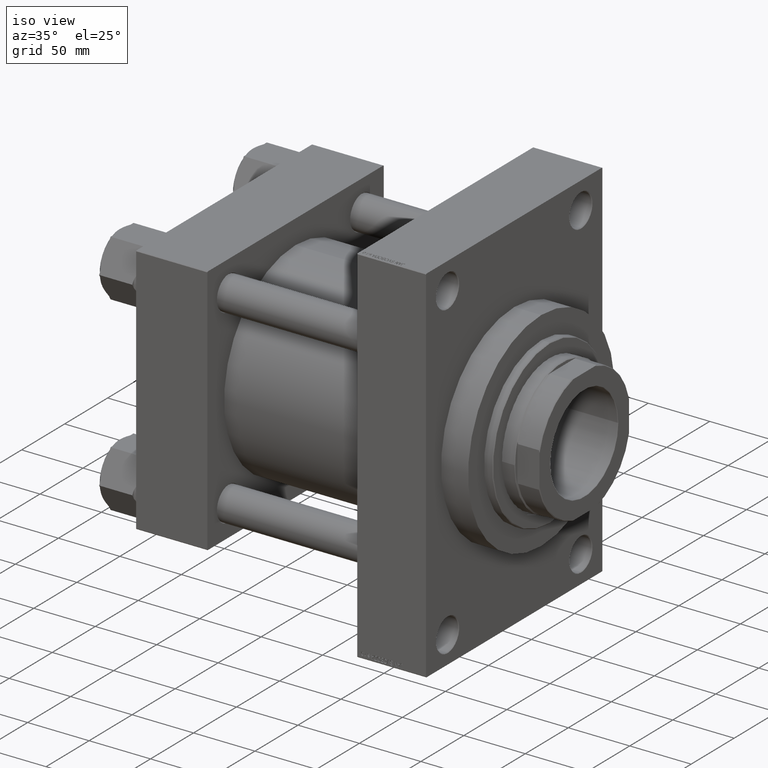
[diagram: clean part render]
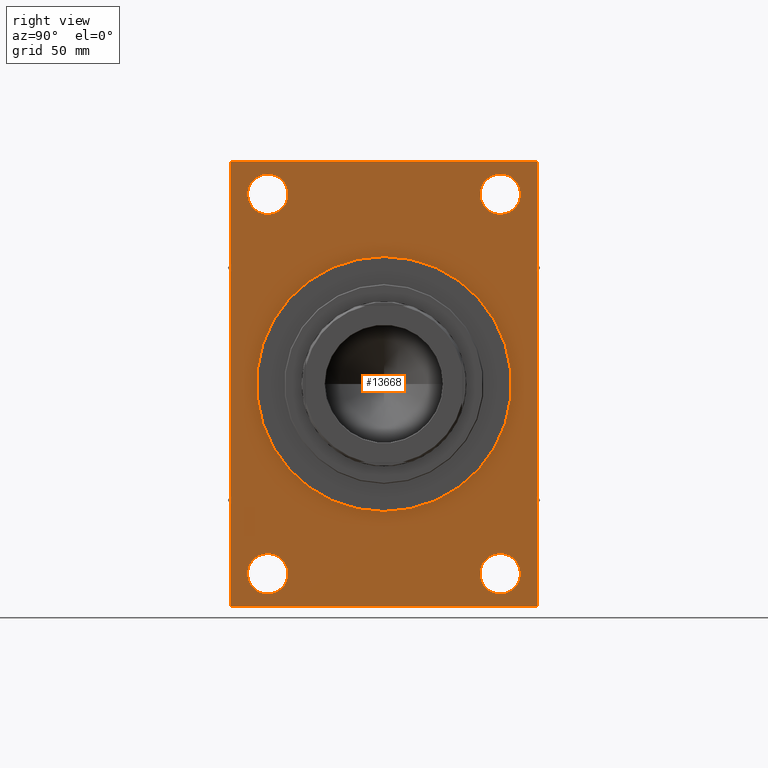
[diagram: tour spotlight — one face highlighted and labeled with its STEP entity id]
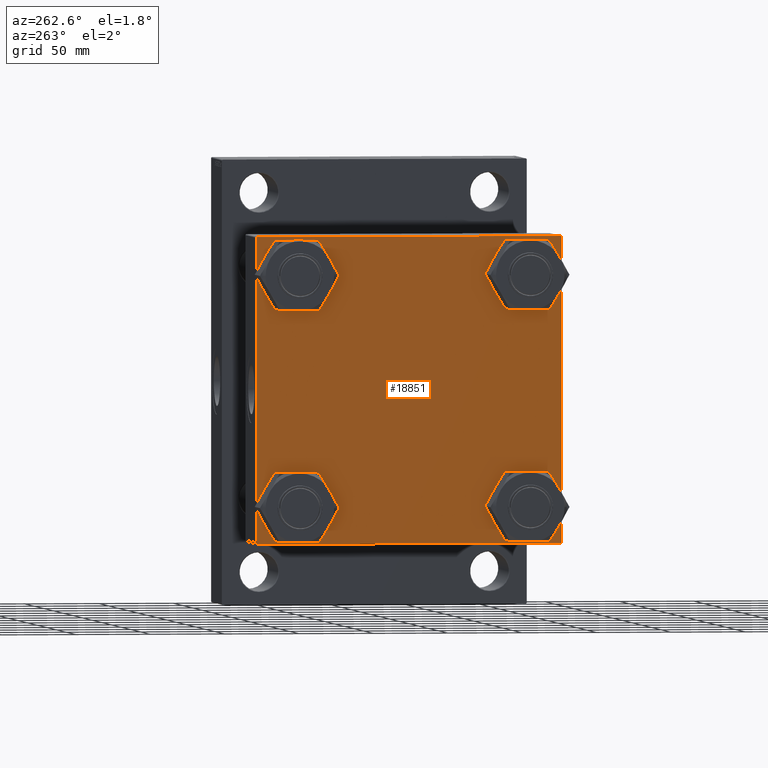
[diagram: tour spotlight — one face highlighted and labeled with its STEP entity id]
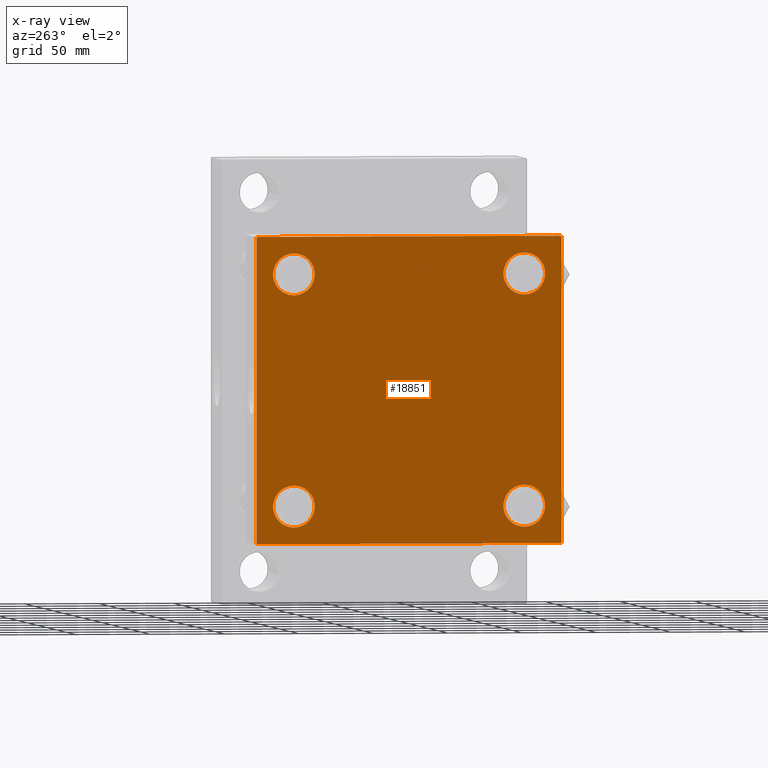
[diagram: x-ray of the same camera — body ghosted, this tour face saturated]
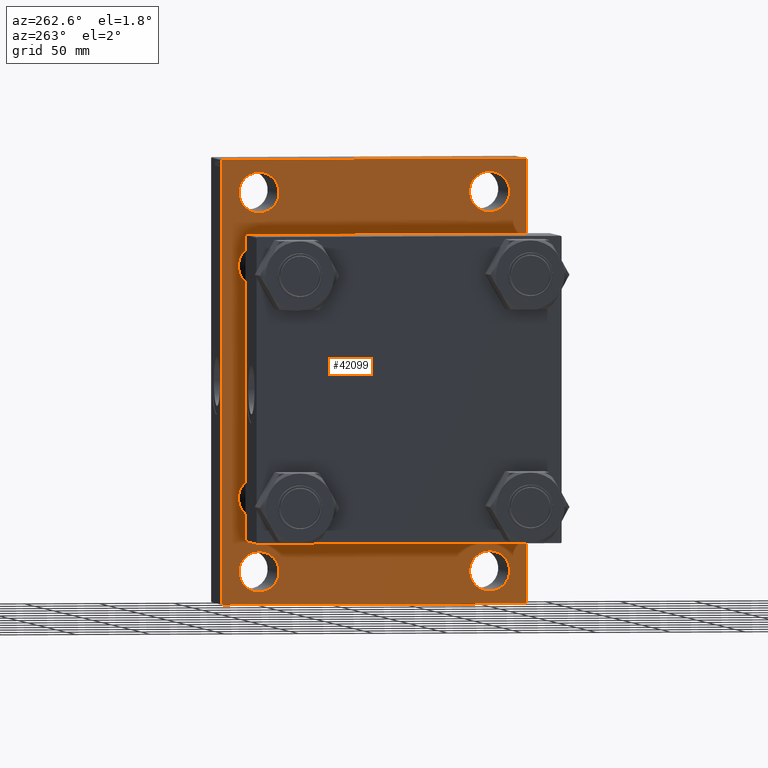
[diagram: tour spotlight — one face highlighted and labeled with its STEP entity id]
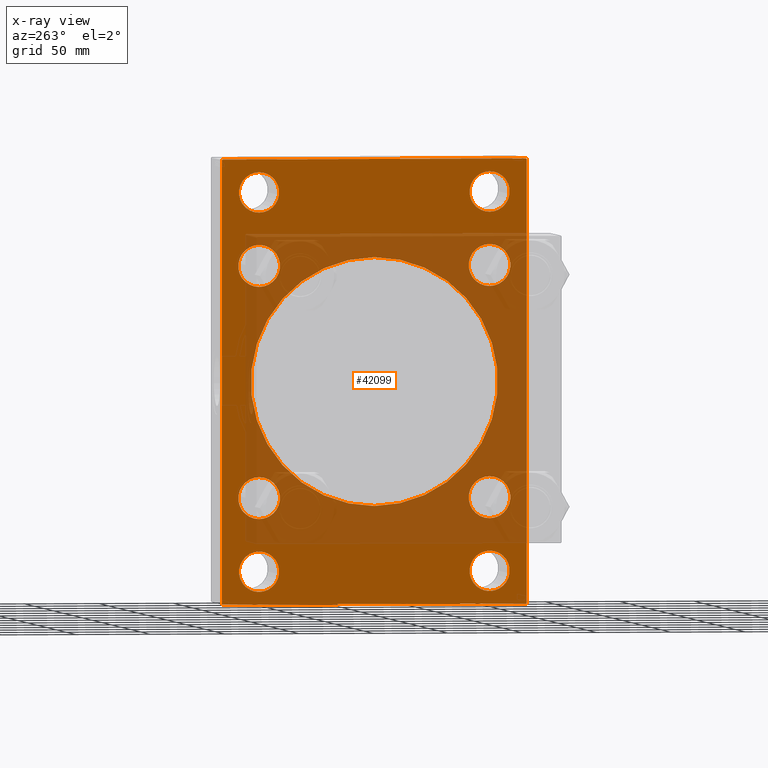
[diagram: x-ray of the same camera — body ghosted, this tour face saturated]
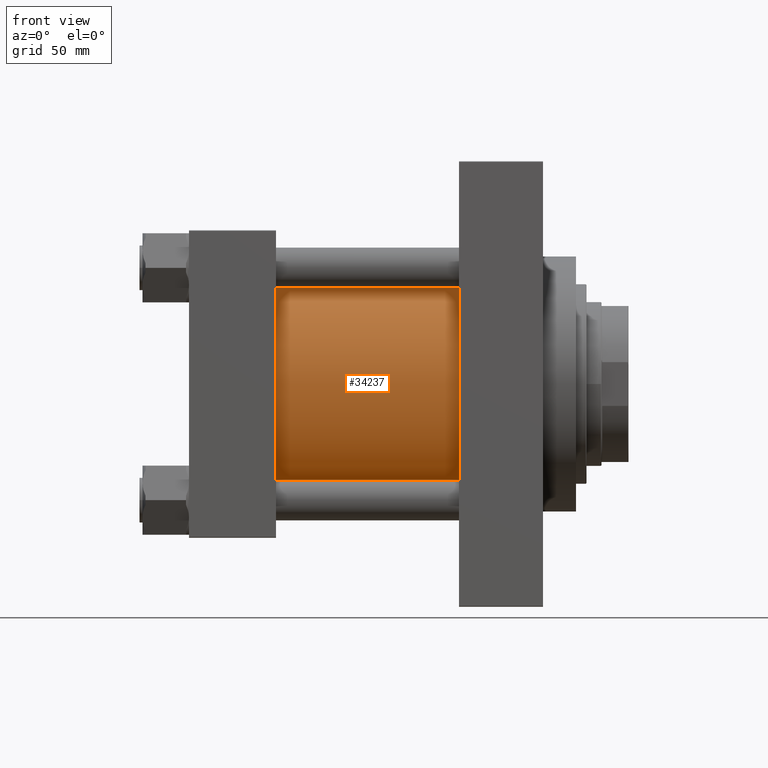
[diagram: tour spotlight — one face highlighted and labeled with its STEP entity id]
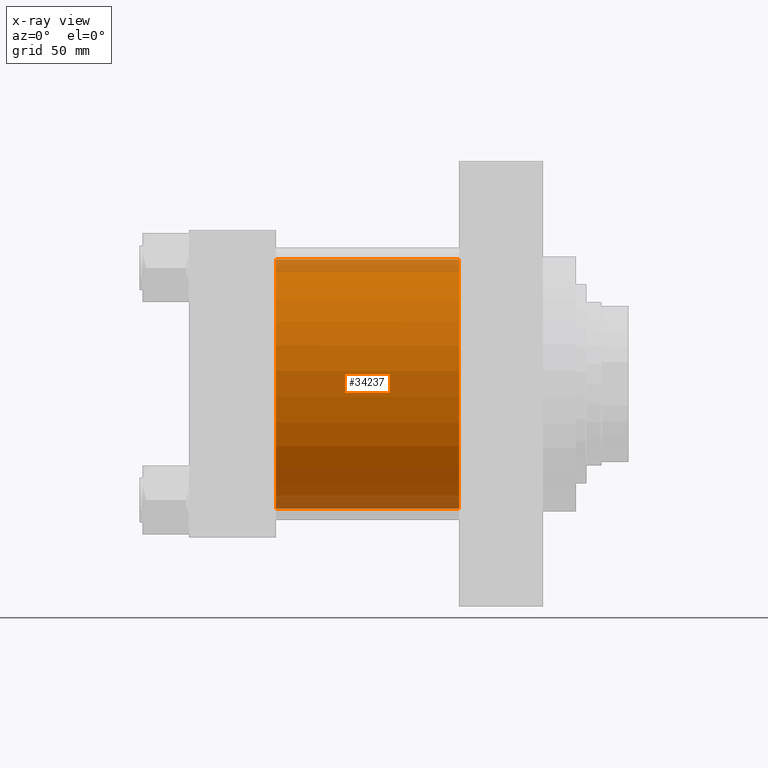
[diagram: x-ray of the same camera — body ghosted, this tour face saturated]
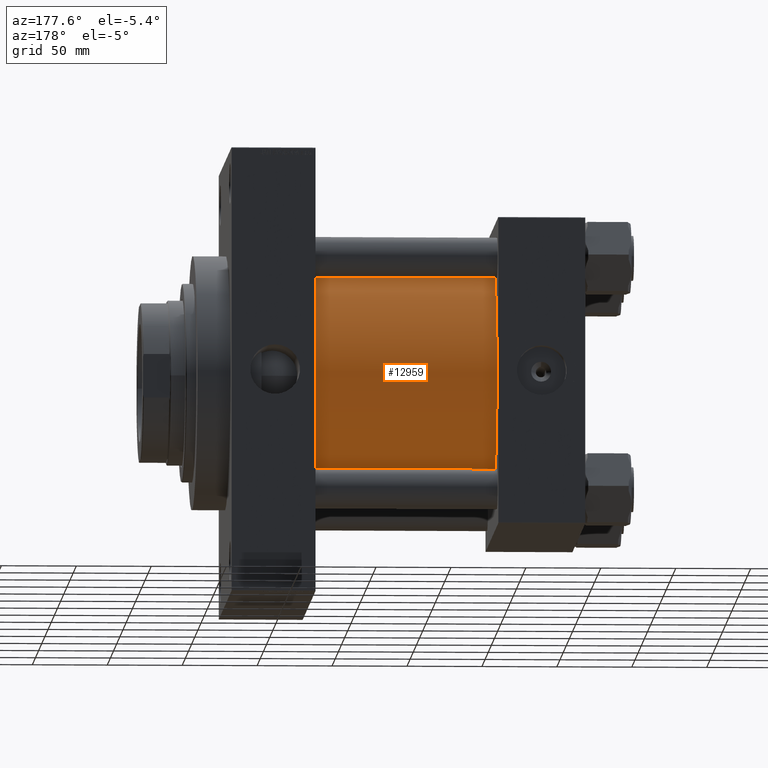
[diagram: tour spotlight — one face highlighted and labeled with its STEP entity id]
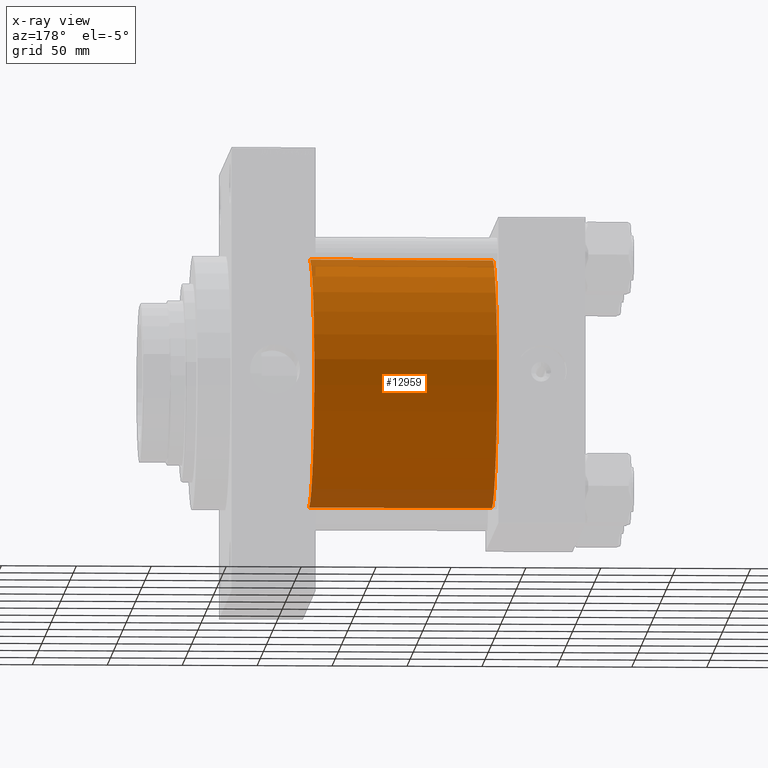
[diagram: x-ray of the same camera — body ghosted, this tour face saturated]
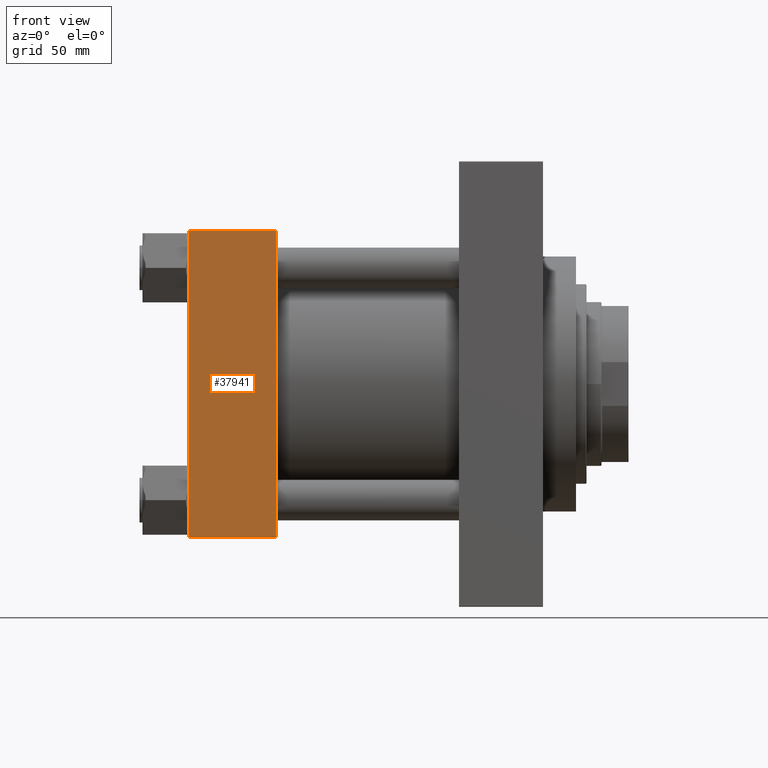
[diagram: tour spotlight — one face highlighted and labeled with its STEP entity id]
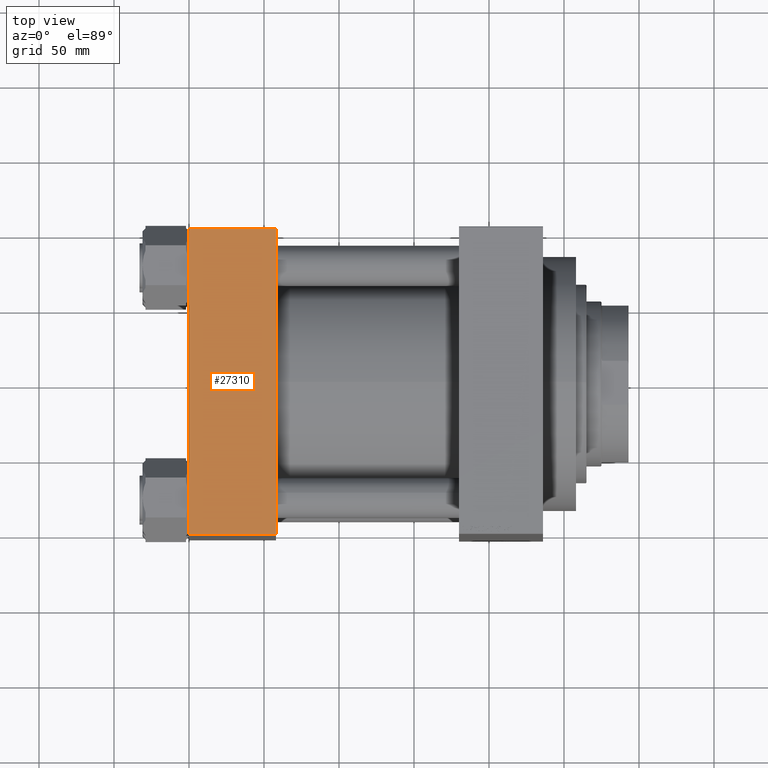
[diagram: tour spotlight — one face highlighted and labeled with its STEP entity id]
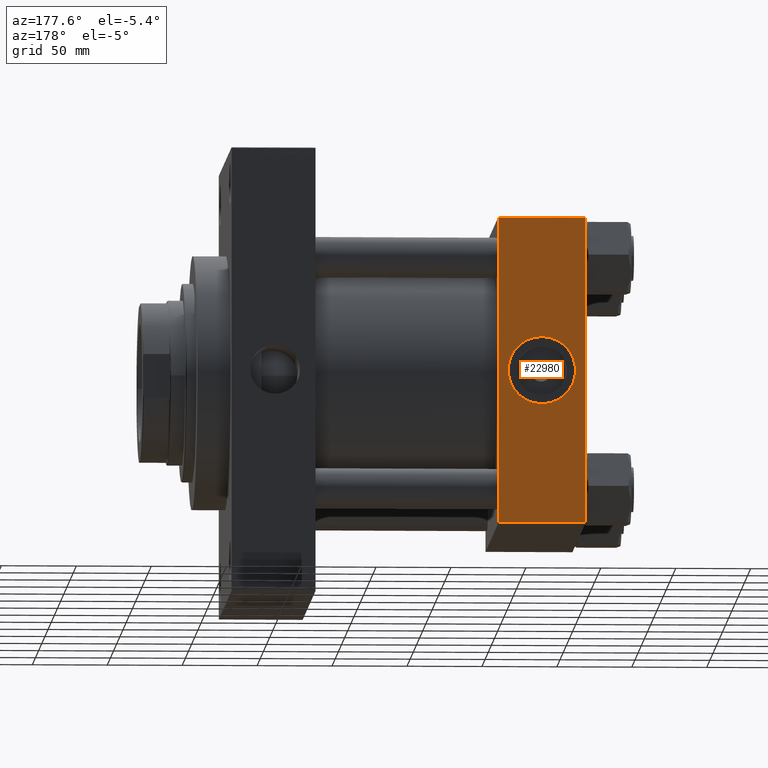
[diagram: tour spotlight — one face highlighted and labeled with its STEP entity id]
A machine part: a face-by-face anatomy tour. The part has 1152 B-rep faces; the first image is the clean iso view, then the 8 largest visible faces are spotlighted one at a time (largest first), each with its STEP entity span.

Face 1 — right view, entity #13668. In plain terms, the highlighted planar face has unit normal (-1, 0, 0).
Definition (entity closure, byte-faithful):
#314 = EDGE_CURVE ( 'NONE', #2600, #5275, #22317, .T. ) ;
#575 = CARTESIAN_POINT ( 'NONE',  ( 236.0000000000000000, -77.49999999999997158, 126.5000000000000284 ) ) ;
#775 = DIRECTION ( 'NONE',  ( 0.000000000000000000, 0.000000000000000000, 1.000000000000000000 ) ) ;
#927 = CARTESIAN_POINT ( 'NONE',  ( 236.0000000000000000, 77.50000000000002842, 126.5000000000000000 ) ) ;
#1020 = VERTEX_POINT ( 'NONE', #30837 ) ;
#1338 = CARTESIAN_POINT ( 'NONE',  ( 236.0000000000000000, 77.50000000000002842, 140.0000000000000568 ) ) ;
#1359 = ORIENTED_EDGE ( 'NONE', *, *, #24578, .T. ) ;
#1675 = VERTEX_POINT ( 'NONE', #43214 ) ;
#1742 = CARTESIAN_POINT ( 'NONE',  ( 236.0000000000000000, 102.0000000000000142, -148.5000000000000000 ) ) ;
#1858 = CIRCLE ( 'NONE', #7235, 13.50000000000006750 ) ;
#2041 = DIRECTION ( 'NONE',  ( -0.000000000000000000, -0.7071067811865474617, -0.7071067811865474617 ) ) ;
#2090 = CARTESIAN_POINT ( 'NONE',  ( 236.0000000000000000, 102.5000000000000142, -148.0000000000000568 ) ) ;
#2209 = DIRECTION ( 'NONE',  ( 0.000000000000000000, 0.000000000000000000, -1.000000000000000000 ) ) ;
#2274 = CARTESIAN_POINT ( 'NONE',  ( 236.0000000000000000, -77.49999999999998579, -113.0000000000000426 ) ) ;
#2600 = VERTEX_POINT ( 'NONE', #13068 ) ;
#2666 = EDGE_LOOP ( 'NONE', ( #9232, #31996 ) ) ;
#2719 = ORIENTED_EDGE ( 'NONE', *, *, #3165, .T. ) ;
#3165 = EDGE_CURVE ( 'NONE', #3547, #39565, #18971, .T. ) ;
#3547 = VERTEX_POINT ( 'NONE', #1742 ) ;
#4019 = DIRECTION ( 'NONE',  ( 0.000000000000000000, 0.000000000000000000, 1.000000000000000000 ) ) ;
#4056 = DIRECTION ( 'NONE',  ( -1.000000000000000000, 0.000000000000000000, -0.000000000000000000 ) ) ;
#4308 = EDGE_CURVE ( 'NONE', #3547, #1675, #19145, .T. ) ;
#4367 = DIRECTION ( 'NONE',  ( -1.000000000000000000, 0.000000000000000000, -0.000000000000000000 ) ) ;
#4500 = CARTESIAN_POINT ( 'NONE',  ( 236.0000000000000000, 77.50000000000002842, -126.5000000000000000 ) ) ;
#4542 = DIRECTION ( 'NONE',  ( 0.000000000000000000, 0.000000000000000000, 1.000000000000000000 ) ) ;
#4602 = FACE_BOUND ( 'NONE', #44759, .T. ) ;
#4839 = FACE_OUTER_BOUND ( 'NONE', #23098, .T. ) ;
#4896 = CARTESIAN_POINT ( 'NONE',  ( 236.0000000000000000, 102.5000000000000142, -148.5000000000000000 ) ) ;
#5275 = VERTEX_POINT ( 'NONE', #20099 ) ;
#5735 = CARTESIAN_POINT ( 'NONE',  ( 236.0000000000000000, 77.50000000000002842, 126.5000000000000000 ) ) ;
#5963 = ORIENTED_EDGE ( 'NONE', *, *, #10660, .F. ) ;
#6222 = DIRECTION ( 'NONE',  ( -1.000000000000000000, 0.000000000000000000, -0.000000000000000000 ) ) ;
#6388 = AXIS2_PLACEMENT_3D ( 'NONE', #26158, #18417, #44278 ) ;
#7233 = ORIENTED_EDGE ( 'NONE', *, *, #32508, .T. ) ;
#7235 = AXIS2_PLACEMENT_3D ( 'NONE', #575, #19153, #37047 ) ;
#7750 = VECTOR ( 'NONE', #2041, 1000.000000000000114 ) ;
#7954 = CARTESIAN_POINT ( 'NONE',  ( 236.0000000000000000, -102.0000000000000568, 148.5000000000000000 ) ) ;
#8292 = DIRECTION ( 'NONE',  ( 0.000000000000000000, -1.000000000000000000, -1.353930517835556727E-16 ) ) ;
#8338 = ORIENTED_EDGE ( 'NONE', *, *, #22907, .T. ) ;
#8369 = CARTESIAN_POINT ( 'NONE',  ( 236.0000000000000000, -102.5000000000000142, 148.5000000000000000 ) ) ;
#8504 = CARTESIAN_POINT ( 'NONE',  ( 236.0000000000000000, 77.50000000000002842, 112.9999999999999289 ) ) ;
#9232 = ORIENTED_EDGE ( 'NONE', *, *, #314, .T. ) ;
#9234 = CIRCLE ( 'NONE', #42411, 13.49999999999995737 ) ;
#9454 = CARTESIAN_POINT ( 'NONE',  ( 236.0000000000000000, 0.000000000000000000, 0.000000000000000000 ) ) ;
#9782 = AXIS2_PLACEMENT_3D ( 'NONE', #23244, #22766, #33163 ) ;
#10236 = EDGE_CURVE ( 'NONE', #26450, #1020, #43564, .T. ) ;
#10239 = CARTESIAN_POINT ( 'NONE',  ( 236.0000000000000000, 102.5000000000000142, 148.5000000000000000 ) ) ;
#10466 = CARTESIAN_POINT ( 'NONE',  ( 236.0000000000000000, 102.0000000000000568, 148.5000000000000000 ) ) ;
#10660 = EDGE_CURVE ( 'NONE', #41978, #21149, #35674, .T. ) ;
#11063 = CARTESIAN_POINT ( 'NONE',  ( 236.0000000000000000, 77.50000000000002842, -126.5000000000000000 ) ) ;
#11221 = EDGE_CURVE ( 'NONE', #21149, #41978, #27220, .T. ) ;
#11598 = VECTOR ( 'NONE', #37812, 1000.000000000000000 ) ;
#11642 = EDGE_CURVE ( 'NONE', #5275, #2600, #31848, .T. ) ;
#11647 = LINE ( 'NONE', #33881, #41204 ) ;
#12284 = VERTEX_POINT ( 'NONE', #2274 ) ;
#13068 = CARTESIAN_POINT ( 'NONE',  ( 236.0000000000000000, 77.50000000000002842, -140.0000000000000568 ) ) ;
#13099 = VERTEX_POINT ( 'NONE', #38063 ) ;
#13374 = VERTEX_POINT ( 'NONE', #30754 ) ;
#13534 = CARTESIAN_POINT ( 'NONE',  ( 236.0000000000000000, -77.49999999999998579, -139.9999999999999716 ) ) ;
#13668 = ADVANCED_FACE ( 'NONE', ( #26356, #38187, #30228, #4602, #27304, #4839 ), #42033, .F. ) ;
#13836 = ORIENTED_EDGE ( 'NONE', *, *, #43353, .T. ) ;
#14112 = LINE ( 'NONE', #28881, #47313 ) ;
#15288 = CARTESIAN_POINT ( 'NONE',  ( 236.0000000000000000, -102.5000000000000142, -148.0000000000000000 ) ) ;
#15683 = AXIS2_PLACEMENT_3D ( 'NONE', #19802, #4367, #19327 ) ;
#17808 = ORIENTED_EDGE ( 'NONE', *, *, #17974, .T. ) ;
#17822 = CIRCLE ( 'NONE', #38558, 13.49999999999995737 ) ;
#17974 = EDGE_CURVE ( 'NONE', #39822, #44425, #32811, .T. ) ;
#18071 = DIRECTION ( 'NONE',  ( 0.000000000000000000, 0.000000000000000000, 1.000000000000000000 ) ) ;
#18417 = DIRECTION ( 'NONE',  ( 1.000000000000000000, 0.000000000000000000, 0.000000000000000000 ) ) ;
#18971 = LINE ( 'NONE', #34654, #11598 ) ;
#19145 = LINE ( 'NONE', #4896, #41736 ) ;
#19153 = DIRECTION ( 'NONE',  ( -1.000000000000000000, 0.000000000000000000, -0.000000000000000000 ) ) ;
#19257 = ORIENTED_EDGE ( 'NONE', *, *, #31194, .T. ) ;
#19327 = DIRECTION ( 'NONE',  ( -0.000000000000000000, 0.000000000000000000, 1.000000000000000000 ) ) ;
#19380 = VERTEX_POINT ( 'NONE', #13534 ) ;
#19443 = AXIS2_PLACEMENT_3D ( 'NONE', #9454, #24196, #2209 ) ;
#19455 = ORIENTED_EDGE ( 'NONE', *, *, #22640, .T. ) ;
#19802 = CARTESIAN_POINT ( 'NONE',  ( 236.0000000000000000, 0.000000000000000000, 0.000000000000000000 ) ) ;
#19938 = DIRECTION ( 'NONE',  ( 0.000000000000000000, 0.000000000000000000, -1.000000000000000000 ) ) ;
#20099 = CARTESIAN_POINT ( 'NONE',  ( 236.0000000000000000, 77.50000000000002842, -112.9999999999999289 ) ) ;
#20126 = VECTOR ( 'NONE', #19938, 1000.000000000000000 ) ;
#20863 = ORIENTED_EDGE ( 'NONE', *, *, #4308, .F. ) ;
#21149 = VERTEX_POINT ( 'NONE', #34215 ) ;
#21369 = CIRCLE ( 'NONE', #9782, 13.50000000000006750 ) ;
#21948 = EDGE_CURVE ( 'NONE', #36865, #31797, #27690, .T. ) ;
#22317 = CIRCLE ( 'NONE', #34665, 13.50000000000006750 ) ;
#22640 = EDGE_CURVE ( 'NONE', #19380, #12284, #17822, .T. ) ;
#22766 = DIRECTION ( 'NONE',  ( -1.000000000000000000, 0.000000000000000000, -0.000000000000000000 ) ) ;
#22800 = AXIS2_PLACEMENT_3D ( 'NONE', #927, #37412, #4542 ) ;
#22907 = EDGE_CURVE ( 'NONE', #12284, #19380, #9234, .T. ) ;
#23098 = EDGE_LOOP ( 'NONE', ( #46542, #19257, #20863, #2719, #30799, #42918, #36084, #1359 ) ) ;
#23244 = CARTESIAN_POINT ( 'NONE',  ( 236.0000000000000000, -77.49999999999997158, 126.5000000000000284 ) ) ;
#23420 = DIRECTION ( 'NONE',  ( -1.000000000000000000, 0.000000000000000000, -0.000000000000000000 ) ) ;
#23686 = CARTESIAN_POINT ( 'NONE',  ( 236.0000000000000000, 102.5000000000000142, 148.0000000000000568 ) ) ;
#24196 = DIRECTION ( 'NONE',  ( 1.000000000000000000, 0.000000000000000000, 0.000000000000000000 ) ) ;
#24495 = DIRECTION ( 'NONE',  ( 0.000000000000000000, -0.7071067811865474617, 0.7071067811865474617 ) ) ;
#24578 = EDGE_CURVE ( 'NONE', #45505, #36865, #38053, .T. ) ;
#24743 = DIRECTION ( 'NONE',  ( 0.000000000000000000, -1.000000000000000000, 0.000000000000000000 ) ) ;
#25608 = EDGE_CURVE ( 'NONE', #1020, #45505, #43346, .T. ) ;
#26028 = EDGE_LOOP ( 'NONE', ( #45164, #5963 ) ) ;
#26158 = CARTESIAN_POINT ( 'NONE',  ( 236.0000000000000000, 0.000000000000000000, 0.000000000000000000 ) ) ;
#26356 = FACE_BOUND ( 'NONE', #31948, .T. ) ;
#26450 = VERTEX_POINT ( 'NONE', #23686 ) ;
#26506 = CARTESIAN_POINT ( 'NONE',  ( 236.0000000000000000, 1.040949779275250495E-14, -85.00000000000001421 ) ) ;
#26872 = DIRECTION ( 'NONE',  ( 0.000000000000000000, 0.000000000000000000, -1.000000000000000000 ) ) ;
#26968 = EDGE_LOOP ( 'NONE', ( #19455, #8338 ) ) ;
#27220 = CIRCLE ( 'NONE', #6388, 85.00000000000001421 ) ;
#27304 = FACE_BOUND ( 'NONE', #26028, .T. ) ;
#27690 = LINE ( 'NONE', #8369, #20126 ) ;
#27693 = ORIENTED_EDGE ( 'NONE', *, *, #31793, .T. ) ;
#28881 = CARTESIAN_POINT ( 'NONE',  ( 236.0000000000000000, -102.0000000000000568, -148.5000000000000284 ) ) ;
#30083 = CARTESIAN_POINT ( 'NONE',  ( 236.0000000000000000, -102.5000000000000142, 148.0000000000000568 ) ) ;
#30228 = FACE_BOUND ( 'NONE', #2666, .T. ) ;
#30754 = CARTESIAN_POINT ( 'NONE',  ( 236.0000000000000000, -77.49999999999997158, 140.0000000000000853 ) ) ;
#30799 = ORIENTED_EDGE ( 'NONE', *, *, #37228, .F. ) ;
#30837 = CARTESIAN_POINT ( 'NONE',  ( 236.0000000000000000, 102.0000000000000568, 148.5000000000000000 ) ) ;
#30903 = DIRECTION ( 'NONE',  ( 0.000000000000000000, 0.000000000000000000, 1.000000000000000000 ) ) ;
#31194 = EDGE_CURVE ( 'NONE', #31797, #1675, #14112, .T. ) ;
#31793 = EDGE_CURVE ( 'NONE', #13374, #13099, #1858, .T. ) ;
#31797 = VERTEX_POINT ( 'NONE', #15288 ) ;
#31848 = CIRCLE ( 'NONE', #40316, 13.50000000000006750 ) ;
#31948 = EDGE_LOOP ( 'NONE', ( #13836, #27693 ) ) ;
#31996 = ORIENTED_EDGE ( 'NONE', *, *, #11642, .T. ) ;
#32508 = EDGE_CURVE ( 'NONE', #44425, #39822, #38114, .T. ) ;
#32811 = CIRCLE ( 'NONE', #22800, 13.50000000000006750 ) ;
#33029 = DIRECTION ( 'NONE',  ( -1.000000000000000000, 0.000000000000000000, -0.000000000000000000 ) ) ;
#33163 = DIRECTION ( 'NONE',  ( 0.000000000000000000, 0.000000000000000000, 1.000000000000000000 ) ) ;
#33489 = AXIS2_PLACEMENT_3D ( 'NONE', #5735, #6222, #35214 ) ;
#33874 = CARTESIAN_POINT ( 'NONE',  ( 236.0000000000000000, -77.49999999999998579, -126.5000000000000000 ) ) ;
#33881 = CARTESIAN_POINT ( 'NONE',  ( 236.0000000000000000, 102.5000000000000142, 148.5000000000000000 ) ) ;
#34215 = CARTESIAN_POINT ( 'NONE',  ( 236.0000000000000000, 0.000000000000000000, 85.00000000000001421 ) ) ;
#34654 = CARTESIAN_POINT ( 'NONE',  ( 236.0000000000000000, 102.5000000000000142, -148.0000000000000568 ) ) ;
#34665 = AXIS2_PLACEMENT_3D ( 'NONE', #4500, #33029, #4019 ) ;
#35214 = DIRECTION ( 'NONE',  ( 0.000000000000000000, 0.000000000000000000, 1.000000000000000000 ) ) ;
#35674 = CIRCLE ( 'NONE', #19443, 85.00000000000001421 ) ;
#36084 = ORIENTED_EDGE ( 'NONE', *, *, #25608, .T. ) ;
#36425 = VECTOR ( 'NONE', #24495, 1000.000000000000114 ) ;
#36865 = VERTEX_POINT ( 'NONE', #30083 ) ;
#37047 = DIRECTION ( 'NONE',  ( 0.000000000000000000, 0.000000000000000000, 1.000000000000000000 ) ) ;
#37228 = EDGE_CURVE ( 'NONE', #26450, #39565, #11647, .T. ) ;
#37412 = DIRECTION ( 'NONE',  ( -1.000000000000000000, 0.000000000000000000, -0.000000000000000000 ) ) ;
#37812 = DIRECTION ( 'NONE',  ( -0.000000000000000000, 0.7071067811865868746, 0.7071067811865081598 ) ) ;
#38053 = LINE ( 'NONE', #45519, #7750 ) ;
#38063 = CARTESIAN_POINT ( 'NONE',  ( 236.0000000000000000, -77.49999999999997158, 112.9999999999999574 ) ) ;
#38114 = CIRCLE ( 'NONE', #33489, 13.50000000000006750 ) ;
#38187 = FACE_BOUND ( 'NONE', #26968, .T. ) ;
#38558 = AXIS2_PLACEMENT_3D ( 'NONE', #33874, #45226, #775 ) ;
#39565 = VERTEX_POINT ( 'NONE', #2090 ) ;
#39822 = VERTEX_POINT ( 'NONE', #1338 ) ;
#40316 = AXIS2_PLACEMENT_3D ( 'NONE', #11063, #4056, #18071 ) ;
#41204 = VECTOR ( 'NONE', #26872, 1000.000000000000000 ) ;
#41736 = VECTOR ( 'NONE', #8292, 1000.000000000000000 ) ;
#41776 = CARTESIAN_POINT ( 'NONE',  ( 236.0000000000000000, -77.49999999999998579, -126.5000000000000000 ) ) ;
#41978 = VERTEX_POINT ( 'NONE', #26506 ) ;
#42033 = PLANE ( 'NONE',  #15683 ) ;
#42411 = AXIS2_PLACEMENT_3D ( 'NONE', #41776, #23420, #30903 ) ;
#42918 = ORIENTED_EDGE ( 'NONE', *, *, #10236, .T. ) ;
#43214 = CARTESIAN_POINT ( 'NONE',  ( 236.0000000000000000, -102.0000000000000568, -148.5000000000000284 ) ) ;
#43286 = VECTOR ( 'NONE', #24743, 1000.000000000000000 ) ;
#43346 = LINE ( 'NONE', #10239, #43286 ) ;
#43353 = EDGE_CURVE ( 'NONE', #13099, #13374, #21369, .T. ) ;
#43564 = LINE ( 'NONE', #10466, #36425 ) ;
#43596 = DIRECTION ( 'NONE',  ( 0.000000000000000000, 0.7071067811865672237, -0.7071067811865279218 ) ) ;
#44278 = DIRECTION ( 'NONE',  ( 0.000000000000000000, 0.000000000000000000, -1.000000000000000000 ) ) ;
#44425 = VERTEX_POINT ( 'NONE', #8504 ) ;
#44759 = EDGE_LOOP ( 'NONE', ( #7233, #17808 ) ) ;
#45164 = ORIENTED_EDGE ( 'NONE', *, *, #11221, .F. ) ;
#45226 = DIRECTION ( 'NONE',  ( -1.000000000000000000, 0.000000000000000000, -0.000000000000000000 ) ) ;
#45505 = VERTEX_POINT ( 'NONE', #7954 ) ;
#45519 = CARTESIAN_POINT ( 'NONE',  ( 236.0000000000000000, -102.5000000000000142, 148.0000000000000568 ) ) ;
#46542 = ORIENTED_EDGE ( 'NONE', *, *, #21948, .T. ) ;
#47313 = VECTOR ( 'NONE', #43596, 1000.000000000000000 ) ;

Face 2 — auxiliary view, entity #18851. An x-ray twin of the same camera follows (body ghosted, this face saturated) — the face is partly hidden behind the body. In plain terms, the highlighted planar face has unit normal (-1, 0, 0).
Definition (entity closure, byte-faithful):
#231 = DIRECTION ( 'NONE',  ( 1.000000000000000000, -0.000000000000000000, -0.000000000000000000 ) ) ;
#236 = LINE ( 'NONE', #41764, #12060 ) ;
#2123 = FACE_BOUND ( 'NONE', #34820, .T. ) ;
#2306 = DIRECTION ( 'NONE',  ( 0.000000000000000000, 0.7071067811865474617, -0.7071067811865474617 ) ) ;
#2845 = FACE_BOUND ( 'NONE', #45286, .T. ) ;
#2987 = VERTEX_POINT ( 'NONE', #16822 ) ;
#3404 = CARTESIAN_POINT ( 'NONE',  ( 0.000000000000000000, 77.44999999999998863, 63.44999999999989626 ) ) ;
#3678 = EDGE_CURVE ( 'NONE', #21447, #29295, #47124, .T. ) ;
#3683 = VERTEX_POINT ( 'NONE', #38711 ) ;
#3849 = DIRECTION ( 'NONE',  ( 0.000000000000000000, 0.000000000000000000, -1.000000000000000000 ) ) ;
#4197 = AXIS2_PLACEMENT_3D ( 'NONE', #5174, #16031, #19890 ) ;
#4816 = ORIENTED_EDGE ( 'NONE', *, *, #47223, .T. ) ;
#5076 = LINE ( 'NONE', #41559, #45716 ) ;
#5091 = ORIENTED_EDGE ( 'NONE', *, *, #13839, .F. ) ;
#5174 = CARTESIAN_POINT ( 'NONE',  ( 0.000000000000000000, 77.44999999999998863, 77.45000000000001705 ) ) ;
#5643 = ORIENTED_EDGE ( 'NONE', *, *, #25108, .T. ) ;
#5715 = CIRCLE ( 'NONE', #31165, 14.00000000000012434 ) ;
#5845 = CARTESIAN_POINT ( 'NONE',  ( 0.000000000000000000, 77.44999999999998863, 77.45000000000001705 ) ) ;
#5970 = DIRECTION ( 'NONE',  ( 0.000000000000000000, -1.000000000000000000, -1.353930517835556727E-16 ) ) ;
#6093 = DIRECTION ( 'NONE',  ( 0.000000000000000000, 0.000000000000000000, 1.000000000000000000 ) ) ;
#6144 = CARTESIAN_POINT ( 'NONE',  ( 0.000000000000000000, -77.44999999999996021, 63.44999999999991047 ) ) ;
#6224 = FACE_BOUND ( 'NONE', #38453, .T. ) ;
#6317 = ORIENTED_EDGE ( 'NONE', *, *, #22171, .T. ) ;
#7267 = AXIS2_PLACEMENT_3D ( 'NONE', #16675, #12330, #31428 ) ;
#7550 = VERTEX_POINT ( 'NONE', #18690 ) ;
#7596 = DIRECTION ( 'NONE',  ( 0.000000000000000000, 0.000000000000000000, 1.000000000000000000 ) ) ;
#7964 = AXIS2_PLACEMENT_3D ( 'NONE', #32197, #39198, #6093 ) ;
#8412 = ORIENTED_EDGE ( 'NONE', *, *, #30491, .T. ) ;
#8691 = DIRECTION ( 'NONE',  ( 0.000000000000000000, -1.000000000000000000, -1.353930517835556973E-16 ) ) ;
#9222 = DIRECTION ( 'NONE',  ( 1.000000000000000000, -0.000000000000000000, -0.000000000000000000 ) ) ;
#9735 = CARTESIAN_POINT ( 'NONE',  ( 0.000000000000000000, 102.2500000000000000, -102.2500000000000000 ) ) ;
#10025 = LINE ( 'NONE', #42648, #44766 ) ;
#10318 = DIRECTION ( 'NONE',  ( -1.000000000000000000, 0.000000000000000000, 0.000000000000000000 ) ) ;
#10329 = ORIENTED_EDGE ( 'NONE', *, *, #3678, .T. ) ;
#10450 = VECTOR ( 'NONE', #28580, 1000.000000000000114 ) ;
#12060 = VECTOR ( 'NONE', #3849, 1000.000000000000000 ) ;
#12088 = CARTESIAN_POINT ( 'NONE',  ( 0.000000000000000000, -101.9999999999999147, 102.5000000000000000 ) ) ;
#12330 = DIRECTION ( 'NONE',  ( 1.000000000000000000, -0.000000000000000000, -0.000000000000000000 ) ) ;
#12839 = ORIENTED_EDGE ( 'NONE', *, *, #41754, .T. ) ;
#13582 = VERTEX_POINT ( 'NONE', #12088 ) ;
#13816 = CARTESIAN_POINT ( 'NONE',  ( 0.000000000000000000, -102.2499999999999716, -102.2499999999999716 ) ) ;
#13839 = EDGE_CURVE ( 'NONE', #2987, #41262, #43471, .T. ) ;
#13916 = VERTEX_POINT ( 'NONE', #19039 ) ;
#15966 = LINE ( 'NONE', #38686, #21435 ) ;
#16031 = DIRECTION ( 'NONE',  ( 1.000000000000000000, -0.000000000000000000, -0.000000000000000000 ) ) ;
#16261 = CIRCLE ( 'NONE', #33253, 14.00000000000012434 ) ;
#16675 = CARTESIAN_POINT ( 'NONE',  ( 0.000000000000000000, -77.44999999999996021, -77.45000000000003126 ) ) ;
#16822 = CARTESIAN_POINT ( 'NONE',  ( 0.000000000000000000, -102.4999999999999716, 102.0000000000000000 ) ) ;
#16856 = ORIENTED_EDGE ( 'NONE', *, *, #36913, .T. ) ;
#17079 = FACE_BOUND ( 'NONE', #24330, .T. ) ;
#17823 = DIRECTION ( 'NONE',  ( 0.000000000000000000, 0.000000000000000000, 1.000000000000000000 ) ) ;
#18256 = EDGE_CURVE ( 'NONE', #47224, #41262, #32667, .T. ) ;
#18347 = VERTEX_POINT ( 'NONE', #42283 ) ;
#18690 = CARTESIAN_POINT ( 'NONE',  ( 0.000000000000000000, 102.0000000000000142, -102.4999999999999716 ) ) ;
#18851 = ADVANCED_FACE ( 'NONE', ( #2845, #6224, #2123, #17079, #27731 ), #46816, .T. ) ;
#19039 = CARTESIAN_POINT ( 'NONE',  ( 0.000000000000000000, 102.5000000000000284, 102.0000000000000142 ) ) ;
#19890 = DIRECTION ( 'NONE',  ( 0.000000000000000000, 0.000000000000000000, 1.000000000000000000 ) ) ;
#21067 = CARTESIAN_POINT ( 'NONE',  ( 0.000000000000000000, 77.44999999999998863, -63.44999999999989626 ) ) ;
#21105 = EDGE_LOOP ( 'NONE', ( #12839, #42312, #45200, #36558, #5091, #22291, #23873, #24190 ) ) ;
#21151 = EDGE_CURVE ( 'NONE', #18347, #13916, #10025, .T. ) ;
#21435 = VECTOR ( 'NONE', #30957, 1000.000000000000114 ) ;
#21447 = VERTEX_POINT ( 'NONE', #27629 ) ;
#22171 = EDGE_CURVE ( 'NONE', #25542, #36318, #16261, .T. ) ;
#22291 = ORIENTED_EDGE ( 'NONE', *, *, #45974, .T. ) ;
#23873 = ORIENTED_EDGE ( 'NONE', *, *, #29499, .F. ) ;
#23969 = DIRECTION ( 'NONE',  ( 0.000000000000000000, 0.000000000000000000, 1.000000000000000000 ) ) ;
#24190 = ORIENTED_EDGE ( 'NONE', *, *, #21151, .T. ) ;
#24330 = EDGE_LOOP ( 'NONE', ( #10329, #16856 ) ) ;
#24334 = LINE ( 'NONE', #43650, #29573 ) ;
#25108 = EDGE_CURVE ( 'NONE', #26972, #3683, #43256, .T. ) ;
#25488 = CARTESIAN_POINT ( 'NONE',  ( 0.000000000000000000, -77.44999999999996021, 77.45000000000003126 ) ) ;
#25521 = AXIS2_PLACEMENT_3D ( 'NONE', #41020, #41261, #40779 ) ;
#25542 = VERTEX_POINT ( 'NONE', #6144 ) ;
#26081 = DIRECTION ( 'NONE',  ( 0.000000000000000000, 0.000000000000000000, 1.000000000000000000 ) ) ;
#26972 = VERTEX_POINT ( 'NONE', #33741 ) ;
#27004 = CIRCLE ( 'NONE', #38561, 14.00000000000012434 ) ;
#27625 = LINE ( 'NONE', #9735, #35976 ) ;
#27629 = CARTESIAN_POINT ( 'NONE',  ( 0.000000000000000000, 77.44999999999998863, 91.45000000000014495 ) ) ;
#27731 = FACE_OUTER_BOUND ( 'NONE', #21105, .T. ) ;
#28004 = ORIENTED_EDGE ( 'NONE', *, *, #33070, .T. ) ;
#28580 = DIRECTION ( 'NONE',  ( 0.000000000000000000, -0.7071067811865474617, 0.7071067811865474617 ) ) ;
#28927 = CIRCLE ( 'NONE', #7267, 14.00000000000012434 ) ;
#29295 = VERTEX_POINT ( 'NONE', #3404 ) ;
#29499 = EDGE_CURVE ( 'NONE', #18347, #13582, #5076, .T. ) ;
#29573 = VECTOR ( 'NONE', #5970, 1000.000000000000000 ) ;
#29850 = EDGE_CURVE ( 'NONE', #7550, #47224, #24334, .T. ) ;
#30491 = EDGE_CURVE ( 'NONE', #44321, #32061, #42654, .T. ) ;
#30957 = DIRECTION ( 'NONE',  ( -0.000000000000000000, 0.7071067811865474617, 0.7071067811865474617 ) ) ;
#31165 = AXIS2_PLACEMENT_3D ( 'NONE', #33331, #231, #26081 ) ;
#31428 = DIRECTION ( 'NONE',  ( 0.000000000000000000, 0.000000000000000000, 1.000000000000000000 ) ) ;
#31841 = DIRECTION ( 'NONE',  ( 0.000000000000000000, 0.000000000000000000, 1.000000000000000000 ) ) ;
#31921 = VECTOR ( 'NONE', #43938, 1000.000000000000000 ) ;
#32061 = VERTEX_POINT ( 'NONE', #21067 ) ;
#32197 = CARTESIAN_POINT ( 'NONE',  ( 0.000000000000000000, 77.44999999999998863, -77.45000000000001705 ) ) ;
#32214 = CARTESIAN_POINT ( 'NONE',  ( 0.000000000000000000, -102.5000000000000000, -101.9999999999998863 ) ) ;
#32667 = LINE ( 'NONE', #13816, #10450 ) ;
#33070 = EDGE_CURVE ( 'NONE', #3683, #26972, #28927, .T. ) ;
#33253 = AXIS2_PLACEMENT_3D ( 'NONE', #25488, #40222, #7596 ) ;
#33331 = CARTESIAN_POINT ( 'NONE',  ( 0.000000000000000000, -77.44999999999996021, 77.45000000000003126 ) ) ;
#33741 = CARTESIAN_POINT ( 'NONE',  ( 0.000000000000000000, -77.44999999999996021, -63.44999999999991047 ) ) ;
#33826 = ORIENTED_EDGE ( 'NONE', *, *, #36638, .T. ) ;
#34808 = AXIS2_PLACEMENT_3D ( 'NONE', #5845, #9222, #23969 ) ;
#34820 = EDGE_LOOP ( 'NONE', ( #4816, #8412 ) ) ;
#35837 = CIRCLE ( 'NONE', #4197, 14.00000000000012434 ) ;
#35976 = VECTOR ( 'NONE', #42344, 1000.000000000000114 ) ;
#36318 = VERTEX_POINT ( 'NONE', #36529 ) ;
#36529 = CARTESIAN_POINT ( 'NONE',  ( 0.000000000000000000, -77.44999999999996021, 91.45000000000015916 ) ) ;
#36558 = ORIENTED_EDGE ( 'NONE', *, *, #18256, .T. ) ;
#36638 = EDGE_CURVE ( 'NONE', #36318, #25542, #5715, .T. ) ;
#36913 = EDGE_CURVE ( 'NONE', #29295, #21447, #35837, .T. ) ;
#38453 = EDGE_LOOP ( 'NONE', ( #5643, #28004 ) ) ;
#38561 = AXIS2_PLACEMENT_3D ( 'NONE', #47074, #42492, #17823 ) ;
#38686 = CARTESIAN_POINT ( 'NONE',  ( 0.000000000000000000, -102.2499999999999716, 102.2499999999999716 ) ) ;
#38711 = CARTESIAN_POINT ( 'NONE',  ( 0.000000000000000000, -77.44999999999996021, -91.45000000000015916 ) ) ;
#39064 = CARTESIAN_POINT ( 'NONE',  ( 0.000000000000000000, 77.44999999999998863, -91.45000000000014495 ) ) ;
#39198 = DIRECTION ( 'NONE',  ( 1.000000000000000000, -0.000000000000000000, -0.000000000000000000 ) ) ;
#39643 = CARTESIAN_POINT ( 'NONE',  ( 0.000000000000000000, 102.5000000000000284, -101.9999999999999147 ) ) ;
#40074 = CARTESIAN_POINT ( 'NONE',  ( 0.000000000000000000, -102.4999999999999716, 102.5000000000000000 ) ) ;
#40222 = DIRECTION ( 'NONE',  ( 1.000000000000000000, -0.000000000000000000, -0.000000000000000000 ) ) ;
#40779 = DIRECTION ( 'NONE',  ( 0.000000000000000000, 0.000000000000000000, 1.000000000000000000 ) ) ;
#41020 = CARTESIAN_POINT ( 'NONE',  ( 0.000000000000000000, -77.44999999999996021, -77.45000000000003126 ) ) ;
#41261 = DIRECTION ( 'NONE',  ( 1.000000000000000000, -0.000000000000000000, -0.000000000000000000 ) ) ;
#41262 = VERTEX_POINT ( 'NONE', #32214 ) ;
#41324 = EDGE_CURVE ( 'NONE', #42800, #7550, #27625, .T. ) ;
#41559 = CARTESIAN_POINT ( 'NONE',  ( 0.000000000000000000, 102.5000000000000284, 102.5000000000000284 ) ) ;
#41754 = EDGE_CURVE ( 'NONE', #13916, #42800, #236, .T. ) ;
#41764 = CARTESIAN_POINT ( 'NONE',  ( 0.000000000000000000, 102.5000000000000284, 102.5000000000000284 ) ) ;
#42283 = CARTESIAN_POINT ( 'NONE',  ( 0.000000000000000000, 102.0000000000000142, 102.5000000000000284 ) ) ;
#42312 = ORIENTED_EDGE ( 'NONE', *, *, #41324, .T. ) ;
#42344 = DIRECTION ( 'NONE',  ( -0.000000000000000000, -0.7071067811865474617, -0.7071067811865474617 ) ) ;
#42460 = CARTESIAN_POINT ( 'NONE',  ( 0.000000000000000000, 0.000000000000000000, 0.000000000000000000 ) ) ;
#42492 = DIRECTION ( 'NONE',  ( 1.000000000000000000, -0.000000000000000000, -0.000000000000000000 ) ) ;
#42648 = CARTESIAN_POINT ( 'NONE',  ( 0.000000000000000000, 102.2500000000000142, 102.2500000000000142 ) ) ;
#42654 = CIRCLE ( 'NONE', #7964, 14.00000000000012434 ) ;
#42800 = VERTEX_POINT ( 'NONE', #39643 ) ;
#43216 = CARTESIAN_POINT ( 'NONE',  ( 0.000000000000000000, -101.9999999999999432, -102.5000000000000000 ) ) ;
#43256 = CIRCLE ( 'NONE', #25521, 14.00000000000012434 ) ;
#43471 = LINE ( 'NONE', #40074, #31921 ) ;
#43650 = CARTESIAN_POINT ( 'NONE',  ( 0.000000000000000000, 102.5000000000000284, -102.4999999999999716 ) ) ;
#43938 = DIRECTION ( 'NONE',  ( 0.000000000000000000, -1.353930517835556973E-16, -1.000000000000000000 ) ) ;
#44321 = VERTEX_POINT ( 'NONE', #39064 ) ;
#44514 = AXIS2_PLACEMENT_3D ( 'NONE', #42460, #10318, #31841 ) ;
#44766 = VECTOR ( 'NONE', #2306, 1000.000000000000114 ) ;
#45200 = ORIENTED_EDGE ( 'NONE', *, *, #29850, .T. ) ;
#45286 = EDGE_LOOP ( 'NONE', ( #33826, #6317 ) ) ;
#45716 = VECTOR ( 'NONE', #8691, 1000.000000000000000 ) ;
#45974 = EDGE_CURVE ( 'NONE', #2987, #13582, #15966, .T. ) ;
#46816 = PLANE ( 'NONE',  #44514 ) ;
#47074 = CARTESIAN_POINT ( 'NONE',  ( 0.000000000000000000, 77.44999999999998863, -77.45000000000001705 ) ) ;
#47124 = CIRCLE ( 'NONE', #34808, 14.00000000000012434 ) ;
#47223 = EDGE_CURVE ( 'NONE', #32061, #44321, #27004, .T. ) ;
#47224 = VERTEX_POINT ( 'NONE', #43216 ) ;

Face 3 — auxiliary view, entity #42099. An x-ray twin of the same camera follows (body ghosted, this face saturated) — the face is partly hidden behind the body. In plain terms, the highlighted planar face has unit normal (-1, 0, 0).
Definition (entity closure, byte-faithful):
#1154 = EDGE_CURVE ( 'NONE', #31870, #47657, #5455, .T. ) ;
#1306 = ORIENTED_EDGE ( 'NONE', *, *, #11389, .F. ) ;
#1543 = CIRCLE ( 'NONE', #7722, 13.50000000000001243 ) ;
#1589 = FACE_BOUND ( 'NONE', #5321, .T. ) ;
#2217 = CARTESIAN_POINT ( 'NONE',  ( 180.0000000000000000, -102.5000000000000142, 148.5000000000000000 ) ) ;
#2944 = CARTESIAN_POINT ( 'NONE',  ( 180.0000000000000000, 125.2500000000000284, 125.2500000000000284 ) ) ;
#3248 = EDGE_CURVE ( 'NONE', #32589, #16309, #10828, .T. ) ;
#3411 = ORIENTED_EDGE ( 'NONE', *, *, #12870, .T. ) ;
#3801 = EDGE_CURVE ( 'NONE', #18951, #5688, #21757, .T. ) ;
#3869 = CARTESIAN_POINT ( 'NONE',  ( 180.0000000000000000, -77.44999999999996021, 63.45000000000001705 ) ) ;
#4073 = AXIS2_PLACEMENT_3D ( 'NONE', #19358, #5109, #30959 ) ;
#4090 = ORIENTED_EDGE ( 'NONE', *, *, #32022, .T. ) ;
#4325 = CARTESIAN_POINT ( 'NONE',  ( 180.0000000000000000, -102.5000000000000142, -148.0000000000000000 ) ) ;
#4339 = ORIENTED_EDGE ( 'NONE', *, *, #31820, .T. ) ;
#4428 = ORIENTED_EDGE ( 'NONE', *, *, #3248, .T. ) ;
#4942 = ORIENTED_EDGE ( 'NONE', *, *, #41895, .T. ) ;
#5039 = CARTESIAN_POINT ( 'NONE',  ( 180.0000000000000000, -77.44999999999996021, -77.45000000000003126 ) ) ;
#5109 = DIRECTION ( 'NONE',  ( 1.000000000000000000, -0.000000000000000000, 0.000000000000000000 ) ) ;
#5321 = EDGE_LOOP ( 'NONE', ( #31751, #3411 ) ) ;
#5412 = CARTESIAN_POINT ( 'NONE',  ( 180.0000000000000000, -77.49999999999998579, -126.5000000000000000 ) ) ;
#5451 = CARTESIAN_POINT ( 'NONE',  ( 180.0000000000000000, 0.000000000000000000, 0.000000000000000000 ) ) ;
#5455 = LINE ( 'NONE', #16314, #35462 ) ;
#5508 = AXIS2_PLACEMENT_3D ( 'NONE', #24403, #38897, #39140 ) ;
#5688 = VERTEX_POINT ( 'NONE', #9661 ) ;
#5856 = CARTESIAN_POINT ( 'NONE',  ( 180.0000000000000000, -125.2499999999972005, -125.2500000000041638 ) ) ;
#5902 = CARTESIAN_POINT ( 'NONE',  ( 180.0000000000000000, 77.50000000000002842, 126.5000000000000000 ) ) ;
#5960 = DIRECTION ( 'NONE',  ( 0.000000000000000000, 0.000000000000000000, 1.000000000000000000 ) ) ;
#6267 = DIRECTION ( 'NONE',  ( 0.000000000000000000, 0.000000000000000000, 1.000000000000000000 ) ) ;
#6619 = LINE ( 'NONE', #21571, #20086 ) ;
#6662 = ORIENTED_EDGE ( 'NONE', *, *, #3801, .T. ) ;
#6689 = AXIS2_PLACEMENT_3D ( 'NONE', #5451, #9317, #20667 ) ;
#6776 = CARTESIAN_POINT ( 'NONE',  ( 180.0000000000000000, 7.562483218957819277E-15, -83.00000000000000000 ) ) ;
#6931 = EDGE_LOOP ( 'NONE', ( #20688, #13910 ) ) ;
#6941 = DIRECTION ( 'NONE',  ( -0.000000000000000000, -0.7071067811865868746, -0.7071067811865081598 ) ) ;
#6973 = EDGE_CURVE ( 'NONE', #26186, #30259, #7110, .T. ) ;
#7065 = VECTOR ( 'NONE', #21952, 1000.000000000000114 ) ;
#7110 = CIRCLE ( 'NONE', #20237, 14.00000000000001243 ) ;
#7178 = LINE ( 'NONE', #40043, #45244 ) ;
#7460 = CARTESIAN_POINT ( 'NONE',  ( 180.0000000000000000, -125.2500000000000284, 125.2500000000000284 ) ) ;
#7722 = AXIS2_PLACEMENT_3D ( 'NONE', #24322, #41958, #5960 ) ;
#8387 = EDGE_CURVE ( 'NONE', #5688, #25436, #37561, .T. ) ;
#8616 = VERTEX_POINT ( 'NONE', #46162 ) ;
#8639 = EDGE_CURVE ( 'NONE', #26147, #39118, #24912, .T. ) ;
#8852 = CIRCLE ( 'NONE', #35868, 14.00000000000001243 ) ;
#8918 = EDGE_CURVE ( 'NONE', #28496, #24901, #11005, .T. ) ;
#9317 = DIRECTION ( 'NONE',  ( -1.000000000000000000, 0.000000000000000000, -0.000000000000000000 ) ) ;
#9535 = CARTESIAN_POINT ( 'NONE',  ( 180.0000000000000000, 77.50000000000002842, 140.0000000000000000 ) ) ;
#9661 = CARTESIAN_POINT ( 'NONE',  ( 180.0000000000000000, 102.5000000000000142, 148.0000000000000568 ) ) ;
#10347 = EDGE_CURVE ( 'NONE', #16334, #38680, #14033, .T. ) ;
#10395 = DIRECTION ( 'NONE',  ( 1.000000000000000000, -0.000000000000000000, 0.000000000000000000 ) ) ;
#10692 = VERTEX_POINT ( 'NONE', #3869 ) ;
#10828 = CIRCLE ( 'NONE', #37846, 13.50000000000006750 ) ;
#11005 = CIRCLE ( 'NONE', #39499, 83.00000000000000000 ) ;
#11389 = EDGE_CURVE ( 'NONE', #22711, #15983, #24917, .T. ) ;
#12045 = VERTEX_POINT ( 'NONE', #13921 ) ;
#12296 = EDGE_CURVE ( 'NONE', #39118, #26147, #45757, .T. ) ;
#12417 = VECTOR ( 'NONE', #47145, 1000.000000000000114 ) ;
#12561 = CARTESIAN_POINT ( 'NONE',  ( 180.0000000000000000, -77.44999999999996021, 77.45000000000003126 ) ) ;
#12608 = CIRCLE ( 'NONE', #24967, 14.00000000000001243 ) ;
#12701 = FACE_OUTER_BOUND ( 'NONE', #17943, .T. ) ;
#12870 = EDGE_CURVE ( 'NONE', #21128, #15313, #20269, .T. ) ;
#12935 = FACE_BOUND ( 'NONE', #6931, .T. ) ;
#13021 = CARTESIAN_POINT ( 'NONE',  ( 180.0000000000000000, 77.44999999999998863, 77.45000000000001705 ) ) ;
#13045 = ORIENTED_EDGE ( 'NONE', *, *, #10347, .T. ) ;
#13077 = DIRECTION ( 'NONE',  ( 1.000000000000000000, -0.000000000000000000, 0.000000000000000000 ) ) ;
#13455 = CARTESIAN_POINT ( 'NONE',  ( 180.0000000000000000, -2.602085213965210642E-15, 0.000000000000000000 ) ) ;
#13698 = DIRECTION ( 'NONE',  ( 1.000000000000000000, 0.000000000000000000, 0.000000000000000000 ) ) ;
#13910 = ORIENTED_EDGE ( 'NONE', *, *, #12296, .T. ) ;
#13921 = CARTESIAN_POINT ( 'NONE',  ( 180.0000000000000000, 77.44999999999998863, -91.45000000000003126 ) ) ;
#14033 = CIRCLE ( 'NONE', #37979, 13.50000000000001243 ) ;
#14374 = ORIENTED_EDGE ( 'NONE', *, *, #6973, .T. ) ;
#14488 = DIRECTION ( 'NONE',  ( 0.000000000000000000, 0.000000000000000000, 1.000000000000000000 ) ) ;
#15279 = DIRECTION ( 'NONE',  ( 0.000000000000000000, 0.000000000000000000, 1.000000000000000000 ) ) ;
#15313 = VERTEX_POINT ( 'NONE', #40202 ) ;
#15546 = CARTESIAN_POINT ( 'NONE',  ( 180.0000000000000000, 102.5000000000000142, 148.5000000000000000 ) ) ;
#15659 = DIRECTION ( 'NONE',  ( 1.000000000000000000, -0.000000000000000000, 0.000000000000000000 ) ) ;
#15705 = AXIS2_PLACEMENT_3D ( 'NONE', #36817, #18207, #25944 ) ;
#15784 = EDGE_CURVE ( 'NONE', #10692, #19594, #18065, .T. ) ;
#15822 = DIRECTION ( 'NONE',  ( 1.000000000000000000, -0.000000000000000000, 0.000000000000000000 ) ) ;
#15847 = FACE_BOUND ( 'NONE', #30669, .T. ) ;
#15983 = VERTEX_POINT ( 'NONE', #4325 ) ;
#16309 = VERTEX_POINT ( 'NONE', #34859 ) ;
#16314 = CARTESIAN_POINT ( 'NONE',  ( 180.0000000000000000, 102.5000000000000142, -148.5000000000000000 ) ) ;
#16334 = VERTEX_POINT ( 'NONE', #38972 ) ;
#16937 = DIRECTION ( 'NONE',  ( 0.000000000000000000, 0.000000000000000000, -1.000000000000000000 ) ) ;
#16993 = DIRECTION ( 'NONE',  ( 0.000000000000000000, 0.000000000000000000, 1.000000000000000000 ) ) ;
#16995 = DIRECTION ( 'NONE',  ( 0.000000000000000000, 0.000000000000000000, 1.000000000000000000 ) ) ;
#17428 = CARTESIAN_POINT ( 'NONE',  ( 180.0000000000000000, 77.44999999999998863, -77.45000000000001705 ) ) ;
#17467 = CIRCLE ( 'NONE', #37555, 14.00000000000001243 ) ;
#17943 = EDGE_LOOP ( 'NONE', ( #19215, #4090, #1306, #45993, #36855, #6662, #40813, #4942 ) ) ;
#18065 = CIRCLE ( 'NONE', #18857, 14.00000000000001243 ) ;
#18207 = DIRECTION ( 'NONE',  ( 1.000000000000000000, -0.000000000000000000, 0.000000000000000000 ) ) ;
#18410 = CARTESIAN_POINT ( 'NONE',  ( 180.0000000000000000, 77.50000000000002842, -126.5000000000000000 ) ) ;
#18474 = CARTESIAN_POINT ( 'NONE',  ( 180.0000000000000000, -102.0000000000000568, -148.5000000000000284 ) ) ;
#18752 = AXIS2_PLACEMENT_3D ( 'NONE', #13021, #46616, #6267 ) ;
#18779 = CIRCLE ( 'NONE', #19539, 83.00000000000000000 ) ;
#18857 = AXIS2_PLACEMENT_3D ( 'NONE', #12561, #38196, #24166 ) ;
#18951 = VERTEX_POINT ( 'NONE', #40265 ) ;
#19140 = EDGE_LOOP ( 'NONE', ( #36157, #40413 ) ) ;
#19215 = ORIENTED_EDGE ( 'NONE', *, *, #1154, .T. ) ;
#19334 = AXIS2_PLACEMENT_3D ( 'NONE', #30517, #39358, #38234 ) ;
#19358 = CARTESIAN_POINT ( 'NONE',  ( 180.0000000000000000, 77.50000000000002842, 126.5000000000000000 ) ) ;
#19521 = DIRECTION ( 'NONE',  ( 0.000000000000000000, 0.000000000000000000, 1.000000000000000000 ) ) ;
#19539 = AXIS2_PLACEMENT_3D ( 'NONE', #13455, #13698, #47277 ) ;
#19594 = VERTEX_POINT ( 'NONE', #28477 ) ;
#19852 = CARTESIAN_POINT ( 'NONE',  ( 180.0000000000000000, 77.50000000000002842, 112.9999999999999858 ) ) ;
#20086 = VECTOR ( 'NONE', #21347, 1000.000000000000000 ) ;
#20182 = DIRECTION ( 'NONE',  ( 0.000000000000000000, -1.000000000000000000, -1.353930517835556727E-16 ) ) ;
#20237 = AXIS2_PLACEMENT_3D ( 'NONE', #5039, #15659, #19521 ) ;
#20269 = CIRCLE ( 'NONE', #18752, 14.00000000000001243 ) ;
#20340 = CARTESIAN_POINT ( 'NONE',  ( 180.0000000000000000, 102.0000000000000142, -148.5000000000000000 ) ) ;
#20396 = CARTESIAN_POINT ( 'NONE',  ( 180.0000000000000000, 77.44999999999998863, -77.45000000000001705 ) ) ;
#20631 = DIRECTION ( 'NONE',  ( 1.000000000000000000, -0.000000000000000000, 0.000000000000000000 ) ) ;
#20640 = DIRECTION ( 'NONE',  ( 0.000000000000000000, 0.000000000000000000, 1.000000000000000000 ) ) ;
#20667 = DIRECTION ( 'NONE',  ( -0.000000000000000000, 0.000000000000000000, 1.000000000000000000 ) ) ;
#20688 = ORIENTED_EDGE ( 'NONE', *, *, #8639, .T. ) ;
#20823 = LINE ( 'NONE', #5856, #23447 ) ;
#21058 = EDGE_LOOP ( 'NONE', ( #4339, #33239 ) ) ;
#21119 = CARTESIAN_POINT ( 'NONE',  ( 180.0000000000000000, -77.44999999999996021, -63.45000000000001705 ) ) ;
#21128 = VERTEX_POINT ( 'NONE', #38548 ) ;
#21347 = DIRECTION ( 'NONE',  ( 0.000000000000000000, -1.000000000000000000, 0.000000000000000000 ) ) ;
#21472 = DIRECTION ( 'NONE',  ( 0.000000000000000000, 0.000000000000000000, 1.000000000000000000 ) ) ;
#21571 = CARTESIAN_POINT ( 'NONE',  ( 180.0000000000000000, 102.5000000000000142, 148.5000000000000000 ) ) ;
#21757 = LINE ( 'NONE', #2944, #12417 ) ;
#21952 = DIRECTION ( 'NONE',  ( -0.000000000000000000, 0.7071067811865474617, 0.7071067811865474617 ) ) ;
#22480 = CIRCLE ( 'NONE', #5508, 13.49999999999995737 ) ;
#22711 = VERTEX_POINT ( 'NONE', #46407 ) ;
#23081 = CARTESIAN_POINT ( 'NONE',  ( 180.0000000000000000, 102.5000000000000142, -148.0000000000000568 ) ) ;
#23418 = CARTESIAN_POINT ( 'NONE',  ( 180.0000000000000000, -2.602085213965210642E-15, 0.000000000000000000 ) ) ;
#23447 = VECTOR ( 'NONE', #24694, 1000.000000000000000 ) ;
#23465 = CARTESIAN_POINT ( 'NONE',  ( 180.0000000000000000, -102.0000000000000568, 148.5000000000000000 ) ) ;
#23549 = AXIS2_PLACEMENT_3D ( 'NONE', #17428, #13077, #32193 ) ;
#24166 = DIRECTION ( 'NONE',  ( 0.000000000000000000, 0.000000000000000000, 1.000000000000000000 ) ) ;
#24178 = EDGE_CURVE ( 'NONE', #38680, #16334, #1543, .T. ) ;
#24322 = CARTESIAN_POINT ( 'NONE',  ( 180.0000000000000000, 77.50000000000002842, -126.5000000000000000 ) ) ;
#24403 = CARTESIAN_POINT ( 'NONE',  ( 180.0000000000000000, -77.49999999999997158, 126.5000000000000284 ) ) ;
#24694 = DIRECTION ( 'NONE',  ( 0.000000000000000000, -0.7071067811865672237, 0.7071067811865279218 ) ) ;
#24745 = EDGE_CURVE ( 'NONE', #18951, #28486, #6619, .T. ) ;
#24901 = VERTEX_POINT ( 'NONE', #30746 ) ;
#24912 = CIRCLE ( 'NONE', #4073, 13.50000000000001243 ) ;
#24917 = LINE ( 'NONE', #2217, #38770 ) ;
#24961 = EDGE_CURVE ( 'NONE', #16309, #32589, #34007, .T. ) ;
#24967 = AXIS2_PLACEMENT_3D ( 'NONE', #20396, #34666, #20640 ) ;
#25436 = VERTEX_POINT ( 'NONE', #23081 ) ;
#25685 = EDGE_CURVE ( 'NONE', #15313, #21128, #40968, .T. ) ;
#25763 = CIRCLE ( 'NONE', #15705, 13.49999999999995737 ) ;
#25918 = ORIENTED_EDGE ( 'NONE', *, *, #30759, .T. ) ;
#25944 = DIRECTION ( 'NONE',  ( 0.000000000000000000, 0.000000000000000000, 1.000000000000000000 ) ) ;
#26147 = VERTEX_POINT ( 'NONE', #9535 ) ;
#26168 = CARTESIAN_POINT ( 'NONE',  ( 180.0000000000000000, 77.44999999999998863, 77.45000000000001705 ) ) ;
#26186 = VERTEX_POINT ( 'NONE', #46748 ) ;
#26481 = CARTESIAN_POINT ( 'NONE',  ( 180.0000000000000000, -77.44999999999996021, -77.45000000000003126 ) ) ;
#26552 = EDGE_CURVE ( 'NONE', #35944, #42822, #22480, .T. ) ;
#26621 = EDGE_CURVE ( 'NONE', #22711, #28486, #40566, .T. ) ;
#26969 = FACE_BOUND ( 'NONE', #21058, .T. ) ;
#27101 = DIRECTION ( 'NONE',  ( 0.000000000000000000, 0.000000000000000000, 1.000000000000000000 ) ) ;
#27899 = ORIENTED_EDGE ( 'NONE', *, *, #34285, .T. ) ;
#27938 = FACE_BOUND ( 'NONE', #37276, .T. ) ;
#28025 = CARTESIAN_POINT ( 'NONE',  ( 180.0000000000000000, 77.50000000000002842, -140.0000000000000000 ) ) ;
#28477 = CARTESIAN_POINT ( 'NONE',  ( 180.0000000000000000, -77.44999999999996021, 91.45000000000004547 ) ) ;
#28486 = VERTEX_POINT ( 'NONE', #23465 ) ;
#28496 = VERTEX_POINT ( 'NONE', #6776 ) ;
#29731 = CARTESIAN_POINT ( 'NONE',  ( 180.0000000000000000, -77.44999999999996021, 77.45000000000003126 ) ) ;
#29854 = ORIENTED_EDGE ( 'NONE', *, *, #24178, .T. ) ;
#30259 = VERTEX_POINT ( 'NONE', #21119 ) ;
#30517 = CARTESIAN_POINT ( 'NONE',  ( 180.0000000000000000, -77.49999999999998579, -126.5000000000000000 ) ) ;
#30669 = EDGE_LOOP ( 'NONE', ( #27899, #14374 ) ) ;
#30746 = CARTESIAN_POINT ( 'NONE',  ( 180.0000000000000000, -2.602085213965210642E-15, 83.00000000000000000 ) ) ;
#30759 = EDGE_CURVE ( 'NONE', #24901, #28496, #18779, .T. ) ;
#30959 = DIRECTION ( 'NONE',  ( 0.000000000000000000, 0.000000000000000000, 1.000000000000000000 ) ) ;
#31552 = FACE_BOUND ( 'NONE', #41945, .T. ) ;
#31572 = EDGE_CURVE ( 'NONE', #8616, #12045, #12608, .T. ) ;
#31751 = ORIENTED_EDGE ( 'NONE', *, *, #25685, .T. ) ;
#31820 = EDGE_CURVE ( 'NONE', #42822, #35944, #25763, .T. ) ;
#31870 = VERTEX_POINT ( 'NONE', #20340 ) ;
#32022 = EDGE_CURVE ( 'NONE', #47657, #15983, #20823, .T. ) ;
#32045 = ORIENTED_EDGE ( 'NONE', *, *, #8918, .T. ) ;
#32193 = DIRECTION ( 'NONE',  ( 0.000000000000000000, 0.000000000000000000, 1.000000000000000000 ) ) ;
#32589 = VERTEX_POINT ( 'NONE', #46089 ) ;
#33239 = ORIENTED_EDGE ( 'NONE', *, *, #26552, .T. ) ;
#33399 = VECTOR ( 'NONE', #36841, 1000.000000000000000 ) ;
#33716 = ORIENTED_EDGE ( 'NONE', *, *, #15784, .T. ) ;
#33797 = CARTESIAN_POINT ( 'NONE',  ( 180.0000000000000000, -77.49999999999997158, 113.0000000000000711 ) ) ;
#34007 = CIRCLE ( 'NONE', #19334, 13.50000000000006750 ) ;
#34055 = DIRECTION ( 'NONE',  ( 0.000000000000000000, 0.000000000000000000, -1.000000000000000000 ) ) ;
#34285 = EDGE_CURVE ( 'NONE', #30259, #26186, #8852, .T. ) ;
#34459 = EDGE_LOOP ( 'NONE', ( #39058, #33716 ) ) ;
#34589 = DIRECTION ( 'NONE',  ( 1.000000000000000000, -0.000000000000000000, 0.000000000000000000 ) ) ;
#34666 = DIRECTION ( 'NONE',  ( 1.000000000000000000, -0.000000000000000000, 0.000000000000000000 ) ) ;
#34859 = CARTESIAN_POINT ( 'NONE',  ( 180.0000000000000000, -77.49999999999998579, -112.9999999999999289 ) ) ;
#35133 = DIRECTION ( 'NONE',  ( 1.000000000000000000, -0.000000000000000000, 0.000000000000000000 ) ) ;
#35174 = FACE_BOUND ( 'NONE', #34459, .T. ) ;
#35462 = VECTOR ( 'NONE', #20182, 1000.000000000000000 ) ;
#35593 = AXIS2_PLACEMENT_3D ( 'NONE', #26168, #40667, #15279 ) ;
#35868 = AXIS2_PLACEMENT_3D ( 'NONE', #26481, #15822, #21472 ) ;
#35944 = VERTEX_POINT ( 'NONE', #33797 ) ;
#36157 = ORIENTED_EDGE ( 'NONE', *, *, #31572, .T. ) ;
#36817 = CARTESIAN_POINT ( 'NONE',  ( 180.0000000000000000, -77.49999999999997158, 126.5000000000000284 ) ) ;
#36841 = DIRECTION ( 'NONE',  ( 0.000000000000000000, 0.000000000000000000, -1.000000000000000000 ) ) ;
#36855 = ORIENTED_EDGE ( 'NONE', *, *, #24745, .F. ) ;
#37276 = EDGE_LOOP ( 'NONE', ( #25918, #32045 ) ) ;
#37456 = CIRCLE ( 'NONE', #23549, 14.00000000000001243 ) ;
#37555 = AXIS2_PLACEMENT_3D ( 'NONE', #29731, #10395, #14488 ) ;
#37561 = LINE ( 'NONE', #15546, #33399 ) ;
#37846 = AXIS2_PLACEMENT_3D ( 'NONE', #5412, #20631, #16995 ) ;
#37979 = AXIS2_PLACEMENT_3D ( 'NONE', #18410, #34589, #27101 ) ;
#38196 = DIRECTION ( 'NONE',  ( 1.000000000000000000, -0.000000000000000000, 0.000000000000000000 ) ) ;
#38234 = DIRECTION ( 'NONE',  ( 0.000000000000000000, 0.000000000000000000, 1.000000000000000000 ) ) ;
#38328 = FACE_BOUND ( 'NONE', #19140, .T. ) ;
#38548 = CARTESIAN_POINT ( 'NONE',  ( 180.0000000000000000, 77.44999999999998863, 63.45000000000000284 ) ) ;
#38680 = VERTEX_POINT ( 'NONE', #28025 ) ;
#38770 = VECTOR ( 'NONE', #16937, 1000.000000000000000 ) ;
#38897 = DIRECTION ( 'NONE',  ( 1.000000000000000000, -0.000000000000000000, 0.000000000000000000 ) ) ;
#38972 = CARTESIAN_POINT ( 'NONE',  ( 180.0000000000000000, 77.50000000000002842, -112.9999999999999858 ) ) ;
#39042 = PLANE ( 'NONE',  #6689 ) ;
#39058 = ORIENTED_EDGE ( 'NONE', *, *, #42419, .T. ) ;
#39118 = VERTEX_POINT ( 'NONE', #19852 ) ;
#39140 = DIRECTION ( 'NONE',  ( 0.000000000000000000, 0.000000000000000000, 1.000000000000000000 ) ) ;
#39197 = EDGE_CURVE ( 'NONE', #12045, #8616, #37456, .T. ) ;
#39289 = CARTESIAN_POINT ( 'NONE',  ( 180.0000000000000000, -77.49999999999997158, 139.9999999999999716 ) ) ;
#39358 = DIRECTION ( 'NONE',  ( 1.000000000000000000, -0.000000000000000000, 0.000000000000000000 ) ) ;
#39499 = AXIS2_PLACEMENT_3D ( 'NONE', #23418, #45169, #34055 ) ;
#40043 = CARTESIAN_POINT ( 'NONE',  ( 180.0000000000000000, 125.2499999999943441, -125.2500000000082707 ) ) ;
#40202 = CARTESIAN_POINT ( 'NONE',  ( 180.0000000000000000, 77.44999999999998863, 91.45000000000003126 ) ) ;
#40265 = CARTESIAN_POINT ( 'NONE',  ( 180.0000000000000000, 102.0000000000000568, 148.5000000000000000 ) ) ;
#40351 = AXIS2_PLACEMENT_3D ( 'NONE', #5902, #35133, #16993 ) ;
#40413 = ORIENTED_EDGE ( 'NONE', *, *, #39197, .T. ) ;
#40566 = LINE ( 'NONE', #7460, #7065 ) ;
#40667 = DIRECTION ( 'NONE',  ( 1.000000000000000000, -0.000000000000000000, 0.000000000000000000 ) ) ;
#40813 = ORIENTED_EDGE ( 'NONE', *, *, #8387, .T. ) ;
#40968 = CIRCLE ( 'NONE', #35593, 14.00000000000001243 ) ;
#41125 = EDGE_LOOP ( 'NONE', ( #44887, #4428 ) ) ;
#41895 = EDGE_CURVE ( 'NONE', #25436, #31870, #7178, .T. ) ;
#41943 = FACE_BOUND ( 'NONE', #41125, .T. ) ;
#41945 = EDGE_LOOP ( 'NONE', ( #13045, #29854 ) ) ;
#41958 = DIRECTION ( 'NONE',  ( 1.000000000000000000, -0.000000000000000000, 0.000000000000000000 ) ) ;
#42099 = ADVANCED_FACE ( 'NONE', ( #26969, #41943, #31552, #12935, #35174, #1589, #38328, #15847, #27938, #12701 ), #39042, .T. ) ;
#42419 = EDGE_CURVE ( 'NONE', #19594, #10692, #17467, .T. ) ;
#42822 = VERTEX_POINT ( 'NONE', #39289 ) ;
#44887 = ORIENTED_EDGE ( 'NONE', *, *, #24961, .T. ) ;
#45169 = DIRECTION ( 'NONE',  ( 1.000000000000000000, 0.000000000000000000, 0.000000000000000000 ) ) ;
#45244 = VECTOR ( 'NONE', #6941, 1000.000000000000000 ) ;
#45757 = CIRCLE ( 'NONE', #40351, 13.50000000000001243 ) ;
#45993 = ORIENTED_EDGE ( 'NONE', *, *, #26621, .T. ) ;
#46089 = CARTESIAN_POINT ( 'NONE',  ( 180.0000000000000000, -77.49999999999998579, -140.0000000000000568 ) ) ;
#46162 = CARTESIAN_POINT ( 'NONE',  ( 180.0000000000000000, 77.44999999999998863, -63.45000000000000284 ) ) ;
#46407 = CARTESIAN_POINT ( 'NONE',  ( 180.0000000000000000, -102.5000000000000142, 148.0000000000000568 ) ) ;
#46616 = DIRECTION ( 'NONE',  ( 1.000000000000000000, -0.000000000000000000, 0.000000000000000000 ) ) ;
#46748 = CARTESIAN_POINT ( 'NONE',  ( 180.0000000000000000, -77.44999999999996021, -91.45000000000004547 ) ) ;
#47145 = DIRECTION ( 'NONE',  ( 0.000000000000000000, 0.7071067811865474617, -0.7071067811865474617 ) ) ;
#47277 = DIRECTION ( 'NONE',  ( 0.000000000000000000, 0.000000000000000000, -1.000000000000000000 ) ) ;
#47657 = VERTEX_POINT ( 'NONE', #18474 ) ;

Face 4 — front view, entity #34237. An x-ray twin of the same camera follows (body ghosted, this face saturated) — the face is partly hidden behind the body. In plain terms, the highlighted cylindrical surface (partial cylindrical patch) has radius 83 mm, axis along (-1, -0, -0).
Definition (entity closure, byte-faithful):
#1137 = AXIS2_PLACEMENT_3D ( 'NONE', #21327, #45858, #41999 ) ;
#6634 = LINE ( 'NONE', #47453, #33286 ) ;
#6776 = CARTESIAN_POINT ( 'NONE',  ( 180.0000000000000000, 7.562483218957819277E-15, -83.00000000000000000 ) ) ;
#10008 = DIRECTION ( 'NONE',  ( -1.000000000000000000, -0.000000000000000000, -0.000000000000000000 ) ) ;
#11949 = ORIENTED_EDGE ( 'NONE', *, *, #26247, .F. ) ;
#12872 = CIRCLE ( 'NONE', #39896, 83.00000000000000000 ) ;
#13455 = CARTESIAN_POINT ( 'NONE',  ( 180.0000000000000000, -2.602085213965210642E-15, 0.000000000000000000 ) ) ;
#13698 = DIRECTION ( 'NONE',  ( 1.000000000000000000, 0.000000000000000000, 0.000000000000000000 ) ) ;
#13703 = DIRECTION ( 'NONE',  ( 0.000000000000000000, 0.000000000000000000, 1.000000000000000000 ) ) ;
#15804 = ORIENTED_EDGE ( 'NONE', *, *, #18907, .T. ) ;
#18779 = CIRCLE ( 'NONE', #19539, 83.00000000000000000 ) ;
#18907 = EDGE_CURVE ( 'NONE', #30076, #36310, #12872, .T. ) ;
#19539 = AXIS2_PLACEMENT_3D ( 'NONE', #13455, #13698, #47277 ) ;
#21327 = CARTESIAN_POINT ( 'NONE',  ( 180.0000000000000000, -2.602085213965210642E-15, 0.000000000000000000 ) ) ;
#23725 = DIRECTION ( 'NONE',  ( -1.000000000000000000, -0.000000000000000000, -0.000000000000000000 ) ) ;
#24901 = VERTEX_POINT ( 'NONE', #30746 ) ;
#24951 = CYLINDRICAL_SURFACE ( 'NONE', #1137, 83.00000000000000000 ) ;
#26247 = EDGE_CURVE ( 'NONE', #28496, #36310, #6634, .T. ) ;
#27159 = ORIENTED_EDGE ( 'NONE', *, *, #37246, .T. ) ;
#27187 = CARTESIAN_POINT ( 'NONE',  ( 57.99999999999999289, -2.602085213965210642E-15, 83.00000000000000000 ) ) ;
#28496 = VERTEX_POINT ( 'NONE', #6776 ) ;
#30076 = VERTEX_POINT ( 'NONE', #27187 ) ;
#30746 = CARTESIAN_POINT ( 'NONE',  ( 180.0000000000000000, -2.602085213965210642E-15, 83.00000000000000000 ) ) ;
#30759 = EDGE_CURVE ( 'NONE', #24901, #28496, #18779, .T. ) ;
#30931 = EDGE_LOOP ( 'NONE', ( #11949, #37578, #27159, #15804 ) ) ;
#32087 = CARTESIAN_POINT ( 'NONE',  ( 57.99999999999999289, -2.602085213965210642E-15, 0.000000000000000000 ) ) ;
#33286 = VECTOR ( 'NONE', #10008, 1000.000000000000000 ) ;
#33520 = VECTOR ( 'NONE', #23725, 1000.000000000000000 ) ;
#34237 = ADVANCED_FACE ( 'NONE', ( #37011 ), #24951, .T. ) ;
#35216 = DIRECTION ( 'NONE',  ( 1.000000000000000000, -0.000000000000000000, -0.000000000000000000 ) ) ;
#36289 = CARTESIAN_POINT ( 'NONE',  ( 57.99999999999999289, 7.562483218957819277E-15, -83.00000000000000000 ) ) ;
#36310 = VERTEX_POINT ( 'NONE', #36289 ) ;
#37011 = FACE_OUTER_BOUND ( 'NONE', #30931, .T. ) ;
#37246 = EDGE_CURVE ( 'NONE', #24901, #30076, #37514, .T. ) ;
#37514 = LINE ( 'NONE', #42077, #33520 ) ;
#37578 = ORIENTED_EDGE ( 'NONE', *, *, #30759, .F. ) ;
#39896 = AXIS2_PLACEMENT_3D ( 'NONE', #32087, #35216, #13703 ) ;
#41999 = DIRECTION ( 'NONE',  ( 0.000000000000000000, 0.000000000000000000, 1.000000000000000000 ) ) ;
#42077 = CARTESIAN_POINT ( 'NONE',  ( 180.0000000000000000, -2.602085213965210642E-15, 83.00000000000000000 ) ) ;
#45858 = DIRECTION ( 'NONE',  ( -1.000000000000000000, -0.000000000000000000, -0.000000000000000000 ) ) ;
#47277 = DIRECTION ( 'NONE',  ( 0.000000000000000000, 0.000000000000000000, -1.000000000000000000 ) ) ;
#47453 = CARTESIAN_POINT ( 'NONE',  ( 180.0000000000000000, 7.562483218957819277E-15, -83.00000000000000000 ) ) ;

Face 5 — auxiliary view, entity #12959. An x-ray twin of the same camera follows (body ghosted, this face saturated) — the face is partly hidden behind the body. In plain terms, the highlighted cylindrical surface (partial cylindrical patch) has radius 83 mm, axis along (-1, -0, -0).
Definition (entity closure, byte-faithful):
#979 = AXIS2_PLACEMENT_3D ( 'NONE', #41067, #30203, #40343 ) ;
#1071 = EDGE_LOOP ( 'NONE', ( #10407, #10442, #27535, #5501 ) ) ;
#5501 = ORIENTED_EDGE ( 'NONE', *, *, #37246, .F. ) ;
#6634 = LINE ( 'NONE', #47453, #33286 ) ;
#6776 = CARTESIAN_POINT ( 'NONE',  ( 180.0000000000000000, 7.562483218957819277E-15, -83.00000000000000000 ) ) ;
#7449 = DIRECTION ( 'NONE',  ( -1.000000000000000000, -0.000000000000000000, -0.000000000000000000 ) ) ;
#8871 = EDGE_CURVE ( 'NONE', #36310, #30076, #21795, .T. ) ;
#8918 = EDGE_CURVE ( 'NONE', #28496, #24901, #11005, .T. ) ;
#10008 = DIRECTION ( 'NONE',  ( -1.000000000000000000, -0.000000000000000000, -0.000000000000000000 ) ) ;
#10360 = DIRECTION ( 'NONE',  ( 0.000000000000000000, 0.000000000000000000, 1.000000000000000000 ) ) ;
#10407 = ORIENTED_EDGE ( 'NONE', *, *, #8918, .F. ) ;
#10442 = ORIENTED_EDGE ( 'NONE', *, *, #26247, .T. ) ;
#11005 = CIRCLE ( 'NONE', #39499, 83.00000000000000000 ) ;
#12959 = ADVANCED_FACE ( 'NONE', ( #40067 ), #25104, .T. ) ;
#21795 = CIRCLE ( 'NONE', #979, 83.00000000000000000 ) ;
#23418 = CARTESIAN_POINT ( 'NONE',  ( 180.0000000000000000, -2.602085213965210642E-15, 0.000000000000000000 ) ) ;
#23725 = DIRECTION ( 'NONE',  ( -1.000000000000000000, -0.000000000000000000, -0.000000000000000000 ) ) ;
#24901 = VERTEX_POINT ( 'NONE', #30746 ) ;
#25104 = CYLINDRICAL_SURFACE ( 'NONE', #31106, 83.00000000000000000 ) ;
#26247 = EDGE_CURVE ( 'NONE', #28496, #36310, #6634, .T. ) ;
#27187 = CARTESIAN_POINT ( 'NONE',  ( 57.99999999999999289, -2.602085213965210642E-15, 83.00000000000000000 ) ) ;
#27535 = ORIENTED_EDGE ( 'NONE', *, *, #8871, .T. ) ;
#28496 = VERTEX_POINT ( 'NONE', #6776 ) ;
#30076 = VERTEX_POINT ( 'NONE', #27187 ) ;
#30203 = DIRECTION ( 'NONE',  ( 1.000000000000000000, -0.000000000000000000, -0.000000000000000000 ) ) ;
#30746 = CARTESIAN_POINT ( 'NONE',  ( 180.0000000000000000, -2.602085213965210642E-15, 83.00000000000000000 ) ) ;
#31106 = AXIS2_PLACEMENT_3D ( 'NONE', #36693, #7449, #10360 ) ;
#33286 = VECTOR ( 'NONE', #10008, 1000.000000000000000 ) ;
#33520 = VECTOR ( 'NONE', #23725, 1000.000000000000000 ) ;
#34055 = DIRECTION ( 'NONE',  ( 0.000000000000000000, 0.000000000000000000, -1.000000000000000000 ) ) ;
#36289 = CARTESIAN_POINT ( 'NONE',  ( 57.99999999999999289, 7.562483218957819277E-15, -83.00000000000000000 ) ) ;
#36310 = VERTEX_POINT ( 'NONE', #36289 ) ;
#36693 = CARTESIAN_POINT ( 'NONE',  ( 180.0000000000000000, -2.602085213965210642E-15, 0.000000000000000000 ) ) ;
#37246 = EDGE_CURVE ( 'NONE', #24901, #30076, #37514, .T. ) ;
#37514 = LINE ( 'NONE', #42077, #33520 ) ;
#39499 = AXIS2_PLACEMENT_3D ( 'NONE', #23418, #45169, #34055 ) ;
#40067 = FACE_OUTER_BOUND ( 'NONE', #1071, .T. ) ;
#40343 = DIRECTION ( 'NONE',  ( 0.000000000000000000, 0.000000000000000000, 1.000000000000000000 ) ) ;
#41067 = CARTESIAN_POINT ( 'NONE',  ( 57.99999999999999289, -2.602085213965210642E-15, 0.000000000000000000 ) ) ;
#42077 = CARTESIAN_POINT ( 'NONE',  ( 180.0000000000000000, -2.602085213965210642E-15, 83.00000000000000000 ) ) ;
#45169 = DIRECTION ( 'NONE',  ( 1.000000000000000000, 0.000000000000000000, 0.000000000000000000 ) ) ;
#47453 = CARTESIAN_POINT ( 'NONE',  ( 180.0000000000000000, 7.562483218957819277E-15, -83.00000000000000000 ) ) ;

Face 6 — front view, entity #37941. In plain terms, the highlighted planar face has unit normal (0, 1, -0).
Definition (entity closure, byte-faithful):
#483 = VECTOR ( 'NONE', #15962, 1000.000000000000000 ) ;
#2987 = VERTEX_POINT ( 'NONE', #16822 ) ;
#3396 = CARTESIAN_POINT ( 'NONE',  ( 58.00000000000000000, -102.4999999999999716, 102.0000000000000000 ) ) ;
#3435 = AXIS2_PLACEMENT_3D ( 'NONE', #4708, #12425, #23782 ) ;
#4708 = CARTESIAN_POINT ( 'NONE',  ( 58.00000000000000000, -102.4999999999999716, 102.5000000000000000 ) ) ;
#9380 = VERTEX_POINT ( 'NONE', #39770 ) ;
#12425 = DIRECTION ( 'NONE',  ( 0.000000000000000000, 1.000000000000000000, -1.353930517835556973E-16 ) ) ;
#13839 = EDGE_CURVE ( 'NONE', #2987, #41262, #43471, .T. ) ;
#14114 = ORIENTED_EDGE ( 'NONE', *, *, #41491, .T. ) ;
#15495 = VECTOR ( 'NONE', #26939, 1000.000000000000000 ) ;
#15962 = DIRECTION ( 'NONE',  ( 1.000000000000000000, 0.000000000000000000, 0.000000000000000000 ) ) ;
#16822 = CARTESIAN_POINT ( 'NONE',  ( 0.000000000000000000, -102.4999999999999716, 102.0000000000000000 ) ) ;
#18702 = ORIENTED_EDGE ( 'NONE', *, *, #13839, .T. ) ;
#23782 = DIRECTION ( 'NONE',  ( 0.000000000000000000, 1.353930517835556973E-16, 1.000000000000000000 ) ) ;
#25392 = EDGE_CURVE ( 'NONE', #43697, #9380, #43875, .T. ) ;
#26939 = DIRECTION ( 'NONE',  ( 0.000000000000000000, -1.353930517835556973E-16, -1.000000000000000000 ) ) ;
#27725 = DIRECTION ( 'NONE',  ( -1.000000000000000000, 0.000000000000000000, 0.000000000000000000 ) ) ;
#30362 = VECTOR ( 'NONE', #27725, 1000.000000000000000 ) ;
#30577 = CARTESIAN_POINT ( 'NONE',  ( 58.00000000000000000, -102.4999999999999716, 102.5000000000000000 ) ) ;
#30680 = EDGE_CURVE ( 'NONE', #43697, #2987, #37887, .T. ) ;
#31105 = CARTESIAN_POINT ( 'NONE',  ( 58.00000000000000000, -102.4999999999999716, 102.0000000000000000 ) ) ;
#31921 = VECTOR ( 'NONE', #43938, 1000.000000000000000 ) ;
#32214 = CARTESIAN_POINT ( 'NONE',  ( 0.000000000000000000, -102.5000000000000000, -101.9999999999998863 ) ) ;
#36056 = ORIENTED_EDGE ( 'NONE', *, *, #30680, .T. ) ;
#37887 = LINE ( 'NONE', #31105, #30362 ) ;
#37941 = ADVANCED_FACE ( 'NONE', ( #38288 ), #45518, .F. ) ;
#37967 = CARTESIAN_POINT ( 'NONE',  ( 58.00000000000000000, -102.5000000000000000, -101.9999999999999432 ) ) ;
#38288 = FACE_OUTER_BOUND ( 'NONE', #41767, .T. ) ;
#39770 = CARTESIAN_POINT ( 'NONE',  ( 58.00000000000000000, -102.5000000000000000, -101.9999999999998863 ) ) ;
#39775 = ORIENTED_EDGE ( 'NONE', *, *, #25392, .F. ) ;
#40074 = CARTESIAN_POINT ( 'NONE',  ( 0.000000000000000000, -102.4999999999999716, 102.5000000000000000 ) ) ;
#41262 = VERTEX_POINT ( 'NONE', #32214 ) ;
#41491 = EDGE_CURVE ( 'NONE', #41262, #9380, #41582, .T. ) ;
#41582 = LINE ( 'NONE', #37967, #483 ) ;
#41767 = EDGE_LOOP ( 'NONE', ( #18702, #14114, #39775, #36056 ) ) ;
#43471 = LINE ( 'NONE', #40074, #31921 ) ;
#43697 = VERTEX_POINT ( 'NONE', #3396 ) ;
#43875 = LINE ( 'NONE', #30577, #15495 ) ;
#43938 = DIRECTION ( 'NONE',  ( 0.000000000000000000, -1.353930517835556973E-16, -1.000000000000000000 ) ) ;
#45518 = PLANE ( 'NONE',  #3435 ) ;

Face 7 — top view, entity #27310. In plain terms, the highlighted planar face has unit normal (0, 0, -1).
Definition (entity closure, byte-faithful):
#1945 = EDGE_LOOP ( 'NONE', ( #43951, #13273, #24909, #20501 ) ) ;
#2732 = CARTESIAN_POINT ( 'NONE',  ( 58.00000000000000000, 102.5000000000000284, 102.5000000000000284 ) ) ;
#3194 = DIRECTION ( 'NONE',  ( 0.000000000000000000, 1.353930517835556973E-16, -1.000000000000000000 ) ) ;
#3994 = AXIS2_PLACEMENT_3D ( 'NONE', #2732, #3194, #47166 ) ;
#5076 = LINE ( 'NONE', #41559, #45716 ) ;
#5260 = DIRECTION ( 'NONE',  ( 0.000000000000000000, -1.000000000000000000, -1.353930517835556973E-16 ) ) ;
#6104 = EDGE_CURVE ( 'NONE', #40538, #38216, #41980, .T. ) ;
#8691 = DIRECTION ( 'NONE',  ( 0.000000000000000000, -1.000000000000000000, -1.353930517835556973E-16 ) ) ;
#10178 = VECTOR ( 'NONE', #5260, 1000.000000000000000 ) ;
#11568 = DIRECTION ( 'NONE',  ( 1.000000000000000000, 0.000000000000000000, 0.000000000000000000 ) ) ;
#12088 = CARTESIAN_POINT ( 'NONE',  ( 0.000000000000000000, -101.9999999999999147, 102.5000000000000000 ) ) ;
#12977 = CARTESIAN_POINT ( 'NONE',  ( 58.00000000000000000, 102.5000000000000284, 102.5000000000000284 ) ) ;
#13273 = ORIENTED_EDGE ( 'NONE', *, *, #33273, .T. ) ;
#13582 = VERTEX_POINT ( 'NONE', #12088 ) ;
#14295 = PLANE ( 'NONE',  #3994 ) ;
#14946 = CARTESIAN_POINT ( 'NONE',  ( 58.00000000000000000, -101.9999999999999716, 102.5000000000000000 ) ) ;
#15504 = CARTESIAN_POINT ( 'NONE',  ( 58.00000000000000000, -101.9999999999999147, 102.5000000000000000 ) ) ;
#18347 = VERTEX_POINT ( 'NONE', #42283 ) ;
#18573 = LINE ( 'NONE', #14946, #45073 ) ;
#20501 = ORIENTED_EDGE ( 'NONE', *, *, #44711, .T. ) ;
#24168 = CARTESIAN_POINT ( 'NONE',  ( 58.00000000000000000, 102.0000000000000142, 102.5000000000000284 ) ) ;
#24909 = ORIENTED_EDGE ( 'NONE', *, *, #6104, .F. ) ;
#26828 = VECTOR ( 'NONE', #34545, 1000.000000000000000 ) ;
#27310 = ADVANCED_FACE ( 'NONE', ( #36067 ), #14295, .F. ) ;
#29499 = EDGE_CURVE ( 'NONE', #18347, #13582, #5076, .T. ) ;
#33273 = EDGE_CURVE ( 'NONE', #13582, #38216, #18573, .T. ) ;
#34545 = DIRECTION ( 'NONE',  ( -1.000000000000000000, 0.000000000000000000, 0.000000000000000000 ) ) ;
#36067 = FACE_OUTER_BOUND ( 'NONE', #1945, .T. ) ;
#38216 = VERTEX_POINT ( 'NONE', #15504 ) ;
#40538 = VERTEX_POINT ( 'NONE', #24168 ) ;
#41559 = CARTESIAN_POINT ( 'NONE',  ( 0.000000000000000000, 102.5000000000000284, 102.5000000000000284 ) ) ;
#41789 = LINE ( 'NONE', #46366, #26828 ) ;
#41980 = LINE ( 'NONE', #12977, #10178 ) ;
#42283 = CARTESIAN_POINT ( 'NONE',  ( 0.000000000000000000, 102.0000000000000142, 102.5000000000000284 ) ) ;
#43951 = ORIENTED_EDGE ( 'NONE', *, *, #29499, .T. ) ;
#44711 = EDGE_CURVE ( 'NONE', #40538, #18347, #41789, .T. ) ;
#45073 = VECTOR ( 'NONE', #11568, 1000.000000000000000 ) ;
#45716 = VECTOR ( 'NONE', #8691, 1000.000000000000000 ) ;
#46366 = CARTESIAN_POINT ( 'NONE',  ( 0.000000000000000000, 102.0000000000000142, 102.5000000000000284 ) ) ;
#47166 = DIRECTION ( 'NONE',  ( 0.000000000000000000, 1.000000000000000000, 1.353930517835556973E-16 ) ) ;

Face 8 — auxiliary view, entity #22980. In plain terms, the highlighted planar face has unit normal (0, 1, 0).
Definition (entity closure, byte-faithful):
#236 = LINE ( 'NONE', #41764, #12060 ) ;
#1147 = CARTESIAN_POINT ( 'NONE',  ( 29.00000000000000000, 102.5000000000000284, 0.000000000000000000 ) ) ;
#1378 = DIRECTION ( 'NONE',  ( 0.000000000000000000, 1.000000000000000000, 0.000000000000000000 ) ) ;
#1556 = CIRCLE ( 'NONE', #6972, 22.50000000000000711 ) ;
#1690 = VECTOR ( 'NONE', #4319, 1000.000000000000000 ) ;
#1894 = DIRECTION ( 'NONE',  ( 0.000000000000000000, 0.000000000000000000, -1.000000000000000000 ) ) ;
#2148 = CARTESIAN_POINT ( 'NONE',  ( 58.00000000000000000, 102.5000000000000284, 102.5000000000000284 ) ) ;
#2256 = CARTESIAN_POINT ( 'NONE',  ( 29.00000000000000000, 102.5000000000000284, 22.50000000000000711 ) ) ;
#2832 = EDGE_CURVE ( 'NONE', #45695, #8477, #1556, .T. ) ;
#3849 = DIRECTION ( 'NONE',  ( 0.000000000000000000, 0.000000000000000000, -1.000000000000000000 ) ) ;
#4319 = DIRECTION ( 'NONE',  ( 1.000000000000000000, 0.000000000000000000, 0.000000000000000000 ) ) ;
#4786 = LINE ( 'NONE', #8181, #1690 ) ;
#5511 = CARTESIAN_POINT ( 'NONE',  ( 58.00000000000000000, 102.5000000000000284, 102.5000000000000284 ) ) ;
#5525 = DIRECTION ( 'NONE',  ( -0.000000000000000000, 1.000000000000000000, 0.000000000000000000 ) ) ;
#5977 = EDGE_CURVE ( 'NONE', #13916, #31134, #4786, .T. ) ;
#6397 = CARTESIAN_POINT ( 'NONE',  ( 58.00000000000000000, 102.5000000000000284, 102.0000000000000142 ) ) ;
#6972 = AXIS2_PLACEMENT_3D ( 'NONE', #1147, #1378, #15628 ) ;
#6981 = ORIENTED_EDGE ( 'NONE', *, *, #41809, .T. ) ;
#7849 = VERTEX_POINT ( 'NONE', #34100 ) ;
#8181 = CARTESIAN_POINT ( 'NONE',  ( 58.00000000000000000, 102.5000000000000284, 102.0000000000000142 ) ) ;
#8477 = VERTEX_POINT ( 'NONE', #2256 ) ;
#9057 = CARTESIAN_POINT ( 'NONE',  ( 29.00000000000000000, 102.5000000000000284, 0.000000000000000000 ) ) ;
#11968 = AXIS2_PLACEMENT_3D ( 'NONE', #9057, #33789, #15644 ) ;
#12060 = VECTOR ( 'NONE', #3849, 1000.000000000000000 ) ;
#13731 = PLANE ( 'NONE',  #25558 ) ;
#13916 = VERTEX_POINT ( 'NONE', #19039 ) ;
#15628 = DIRECTION ( 'NONE',  ( 0.000000000000000000, 0.000000000000000000, 1.000000000000000000 ) ) ;
#15644 = DIRECTION ( 'NONE',  ( 0.000000000000000000, 0.000000000000000000, 1.000000000000000000 ) ) ;
#16204 = EDGE_LOOP ( 'NONE', ( #33955, #29311 ) ) ;
#16449 = CARTESIAN_POINT ( 'NONE',  ( 58.00000000000000000, 102.5000000000000284, -101.9999999999999716 ) ) ;
#16691 = EDGE_LOOP ( 'NONE', ( #6981, #32877, #35500, #40250 ) ) ;
#17110 = FACE_BOUND ( 'NONE', #16204, .T. ) ;
#17971 = EDGE_CURVE ( 'NONE', #8477, #45695, #45934, .T. ) ;
#19039 = CARTESIAN_POINT ( 'NONE',  ( 0.000000000000000000, 102.5000000000000284, 102.0000000000000142 ) ) ;
#22980 = ADVANCED_FACE ( 'NONE', ( #17110, #46351 ), #13731, .T. ) ;
#23766 = EDGE_CURVE ( 'NONE', #7849, #42800, #45935, .T. ) ;
#23877 = LINE ( 'NONE', #5511, #28296 ) ;
#25558 = AXIS2_PLACEMENT_3D ( 'NONE', #2148, #5525, #42730 ) ;
#26245 = VECTOR ( 'NONE', #42310, 1000.000000000000000 ) ;
#28296 = VECTOR ( 'NONE', #1894, 1000.000000000000000 ) ;
#29311 = ORIENTED_EDGE ( 'NONE', *, *, #2832, .F. ) ;
#31134 = VERTEX_POINT ( 'NONE', #6397 ) ;
#32877 = ORIENTED_EDGE ( 'NONE', *, *, #23766, .T. ) ;
#33789 = DIRECTION ( 'NONE',  ( 0.000000000000000000, 1.000000000000000000, 0.000000000000000000 ) ) ;
#33955 = ORIENTED_EDGE ( 'NONE', *, *, #17971, .F. ) ;
#34100 = CARTESIAN_POINT ( 'NONE',  ( 58.00000000000000000, 102.5000000000000284, -101.9999999999999147 ) ) ;
#35500 = ORIENTED_EDGE ( 'NONE', *, *, #41754, .F. ) ;
#39643 = CARTESIAN_POINT ( 'NONE',  ( 0.000000000000000000, 102.5000000000000284, -101.9999999999999147 ) ) ;
#40250 = ORIENTED_EDGE ( 'NONE', *, *, #5977, .T. ) ;
#41646 = CARTESIAN_POINT ( 'NONE',  ( 29.00000000000000355, 102.5000000000000284, -22.50000000000000711 ) ) ;
#41754 = EDGE_CURVE ( 'NONE', #13916, #42800, #236, .T. ) ;
#41764 = CARTESIAN_POINT ( 'NONE',  ( 0.000000000000000000, 102.5000000000000284, 102.5000000000000284 ) ) ;
#41809 = EDGE_CURVE ( 'NONE', #31134, #7849, #23877, .T. ) ;
#42310 = DIRECTION ( 'NONE',  ( -1.000000000000000000, 0.000000000000000000, 0.000000000000000000 ) ) ;
#42730 = DIRECTION ( 'NONE',  ( 0.000000000000000000, -0.000000000000000000, 1.000000000000000000 ) ) ;
#42800 = VERTEX_POINT ( 'NONE', #39643 ) ;
#45695 = VERTEX_POINT ( 'NONE', #41646 ) ;
#45934 = CIRCLE ( 'NONE', #11968, 22.50000000000000711 ) ;
#45935 = LINE ( 'NONE', #16449, #26245 ) ;
#46351 = FACE_OUTER_BOUND ( 'NONE', #16691, .T. ) ;